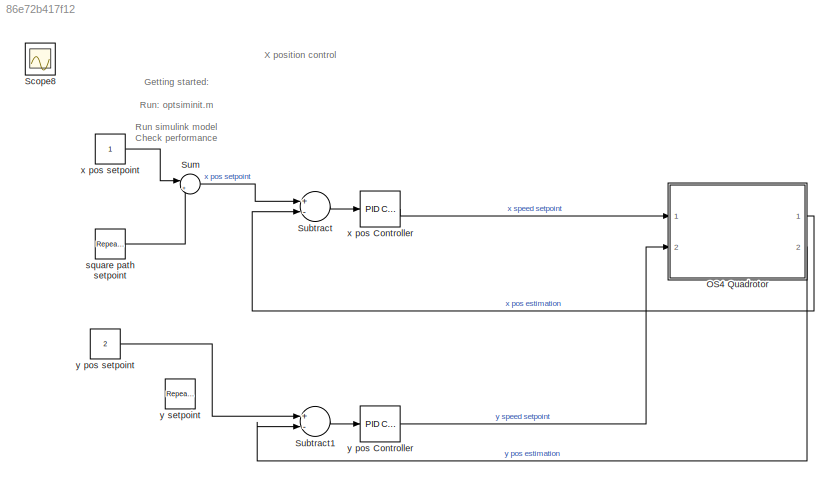
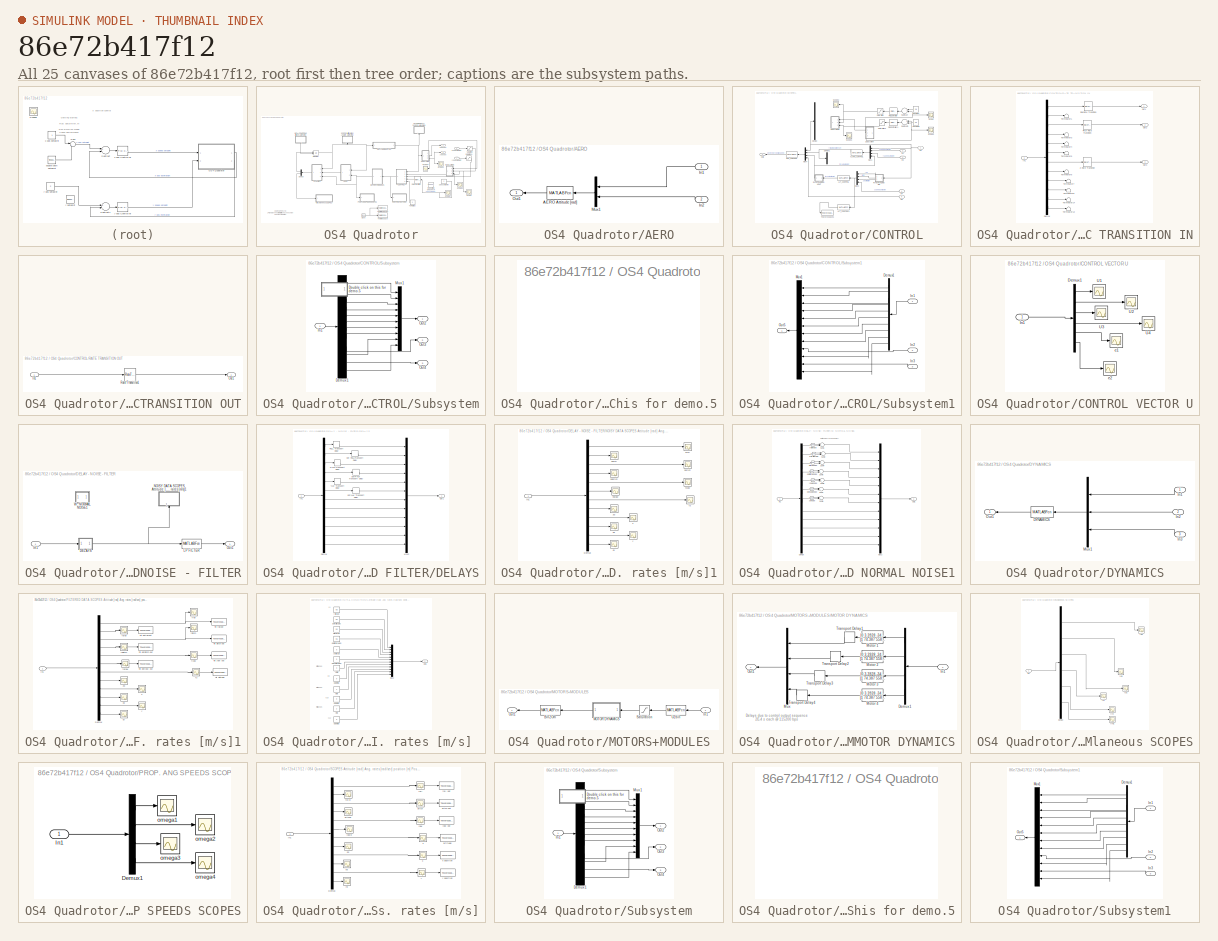
[diagram: thumbnail index - all 25 canvases of the model, root first then tree order]
MODEL slx_86e72b417f12
KIND model
CONFIG AbsTol = auto
CONFIG EnableMultiTasking = on
CONFIG FixedStep = 0.01
CONFIG MaxStep = auto
CONFIG MinStep = auto
CONFIG RelTol = 1e-3
CONFIG SampleTimeConstraint = Unconstrained
CONFIG Solver = ode4
CONFIG SolverName = ode4
CONFIG StartTime = 0.0
CONFIG StopTime = 10
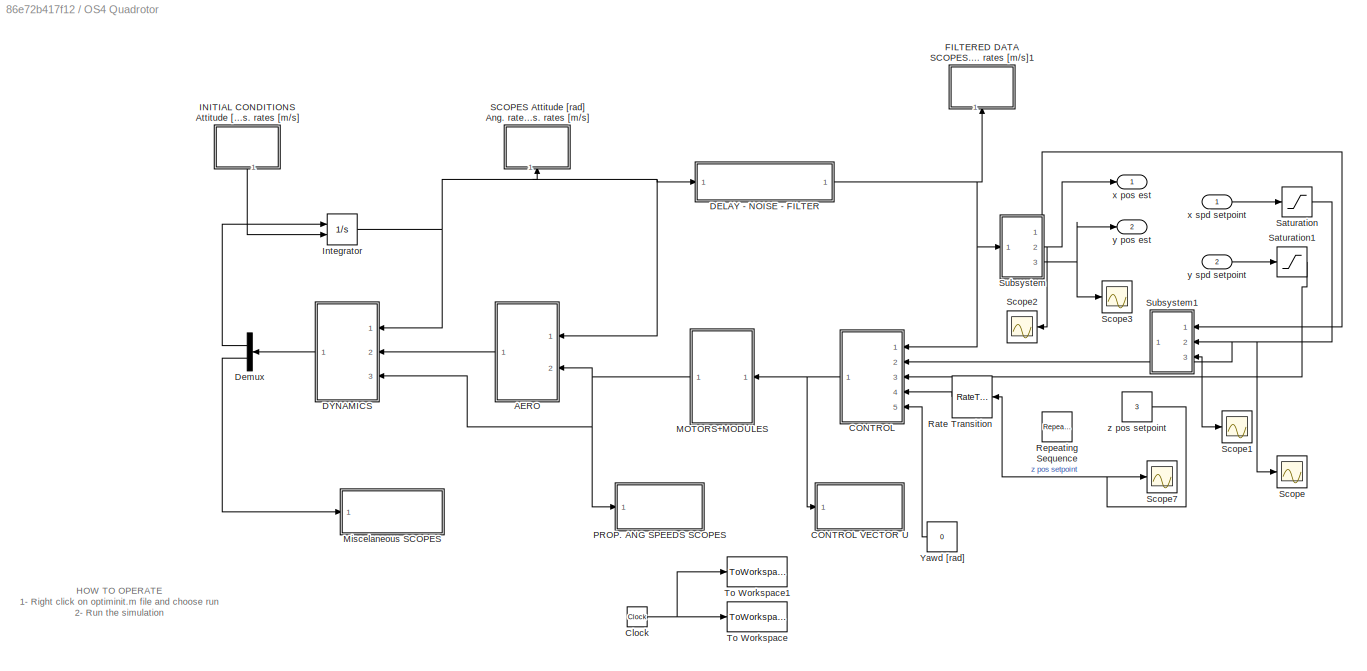
BLOCK [SubSystem] OS4 Quadrotor
  Ports = [2, 2]
  RequestExecContextInheritance = off
  Variant = off
BLOCK [SubSystem] OS4 Quadrotor/AERO
  Ports = [2, 1]
  RequestExecContextInheritance = off
  Variant = off
BLOCK [MATLABFcn] OS4 Quadrotor/AERO/AERO Attitude [rad]
  MATLABFcn = aero
  OutputDimensions = 24
  Ports = [1, 1]
BLOCK [Inport] OS4 Quadrotor/AERO/In1
  IconDisplay = Port number
BLOCK [Inport] OS4 Quadrotor/AERO/In2
  IconDisplay = Port number
  Port = 2
BLOCK [Mux] OS4 Quadrotor/AERO/Mux1
  DisplayOption = bar
  Inputs = 2
  Ports = [2, 1]
BLOCK [Outport] OS4 Quadrotor/AERO/Out1
  IconDisplay = Port number
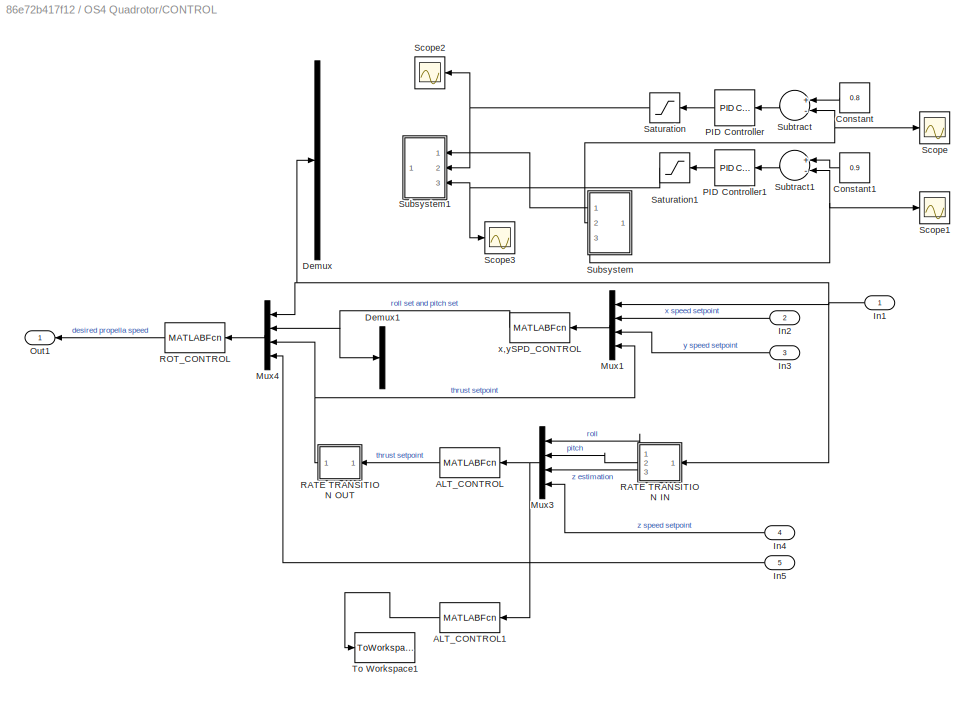
BLOCK [SubSystem] OS4 Quadrotor/CONTROL
  Ports = [5, 1]
  RequestExecContextInheritance = off
  Variant = off
BLOCK [SubSystem] OS4 Quadrotor/CONTROL VECTOR U
  Ports = [1]
  RequestExecContextInheritance = off
  Variant = off
BLOCK [Demux] OS4 Quadrotor/CONTROL VECTOR U/Demux1
  Outputs = 6
  Ports = [1, 6]
BLOCK [Inport] OS4 Quadrotor/CONTROL VECTOR U/In1
  IconDisplay = Port number
BLOCK [Scope] OS4 Quadrotor/CONTROL VECTOR U/U1
  NumInputPorts = 1
  Ports = [1]
  ScopeSpecificationString = C++SS(StrPVP('Location','[5, 52, 1021, 759]'),StrPVP('Open','off'),MxPVP('AxesTitles',53,'struct(''axes1'',''%<SignalLabel>'')'),StrPVP('TimeRange','3.5'),StrPVP('YMin','144.101'),StrPVP('YMax','144.104'),StrPVP('SaveName','ScopeData7'),StrPVP('DataFormat','StructureWithTime'),StrPVP('LimitDataPoints','off'),StrPVP('BlockParamSampleTime','0'),StrPVP('Decimation','1'),StrPVP('BlockParamSampleInput'...<+8ch>
BLOCK [Scope] OS4 Quadrotor/CONTROL VECTOR U/U2
  NumInputPorts = 1
  Ports = [1]
  ScopeSpecificationString = C++SS(StrPVP('Location','[674, 56, 1019, 356]'),StrPVP('Open','off'),MxPVP('AxesTitles',53,'struct(''axes1'',''%<SignalLabel>'')'),StrPVP('YMin','-0.6'),StrPVP('YMax','0.4'),StrPVP('SaveName','ScopeData8'),StrPVP('DataFormat','StructureWithTime'),StrPVP('LimitDataPoints','off'),StrPVP('BlockParamSampleTime','0'),StrPVP('Decimation','1'),StrPVP('BlockParamSampleInput','off'))
BLOCK [Scope] OS4 Quadrotor/CONTROL VECTOR U/U3
  NumInputPorts = 1
  Ports = [1]
  ScopeSpecificationString = C++SS(StrPVP('Location','[679, 422, 1019, 729]'),StrPVP('Open','off'),MxPVP('AxesTitles',53,'struct(''axes1'',''%<SignalLabel>'')'),StrPVP('YMin','-0.65'),StrPVP('YMax','0.35'),StrPVP('SaveName','ScopeData9'),StrPVP('DataFormat','StructureWithTime'),StrPVP('LimitDataPoints','off'),StrPVP('BlockParamSampleTime','0'),StrPVP('Decimation','1'),StrPVP('BlockParamSampleInput','off'))
BLOCK [Scope] OS4 Quadrotor/CONTROL VECTOR U/U4
  NumInputPorts = 1
  Ports = [1]
  ScopeSpecificationString = C++SS(StrPVP('Location','[5, 52, 1021, 729]'),StrPVP('Open','off'),MxPVP('AxesTitles',53,'struct(''axes1'',''%<SignalLabel>'')'),StrPVP('YMin','0'),StrPVP('YMax','150'),StrPVP('SaveName','ScopeData14'),StrPVP('DataFormat','StructureWithTime'),StrPVP('LimitDataPoints','off'),StrPVP('BlockParamSampleTime','0'),StrPVP('Decimation','1'),StrPVP('BlockParamSampleInput','off'))
BLOCK [Scope] OS4 Quadrotor/CONTROL VECTOR U/e1
  NumInputPorts = 1
  Ports = [1]
  ScopeSpecificationString = C++SS(StrPVP('Location','[102, 458, 407, 762]'),StrPVP('Open','off'),MxPVP('AxesTitles',53,'struct(''axes1'',''%<SignalLabel>'')'),StrPVP('YMin','0'),StrPVP('YMax','150'),StrPVP('SaveName','ScopeData11'),StrPVP('DataFormat','StructureWithTime'),StrPVP('LimitDataPoints','off'),StrPVP('BlockParamSampleTime','0'),StrPVP('Decimation','1'),StrPVP('BlockParamSampleInput','off'))
BLOCK [Scope] OS4 Quadrotor/CONTROL VECTOR U/e2
  NumInputPorts = 1
  Ports = [1]
  ScopeSpecificationString = C++SS(StrPVP('Location','[339, 59, 682, 351]'),StrPVP('Open','off'),MxPVP('AxesTitles',53,'struct(''axes1'',''%<SignalLabel>'')'),StrPVP('YMin','0'),StrPVP('YMax','150'),StrPVP('SaveName','ScopeData12'),StrPVP('DataFormat','StructureWithTime'),StrPVP('LimitDataPoints','off'),StrPVP('BlockParamSampleTime','0'),StrPVP('Decimation','1'),StrPVP('BlockParamSampleInput','off'))
BLOCK [MATLABFcn] OS4 Quadrotor/CONTROL/ALT_CONTROL
  MATLABFcn = alt_control
  OutputDimensions = 1
  Ports = [1, 1]
  SampleTime = 0.05
BLOCK [MATLABFcn] OS4 Quadrotor/CONTROL/ALT_CONTROL1
  Commented = on
  MATLABFcn = error_altitude
  OutputDimensions = 1
  Ports = [1, 1]
  SampleTime = 0.05
BLOCK [Constant] OS4 Quadrotor/CONTROL/Constant
  Value = 0.8
BLOCK [Constant] OS4 Quadrotor/CONTROL/Constant1
  Value = 0.9
BLOCK [Demux] OS4 Quadrotor/CONTROL/Demux
  DisplayOption = bar
  Outputs = 12
  Ports = [1, 12]
BLOCK [Demux] OS4 Quadrotor/CONTROL/Demux1
  DisplayOption = bar
  Outputs = 2
  Ports = [1, 2]
BLOCK [Inport] OS4 Quadrotor/CONTROL/In1
  IconDisplay = Port number
BLOCK [Inport] OS4 Quadrotor/CONTROL/In2
  IconDisplay = Port number
  Port = 2
BLOCK [Inport] OS4 Quadrotor/CONTROL/In3
  IconDisplay = Port number
  Port = 3
BLOCK [Inport] OS4 Quadrotor/CONTROL/In4
  IconDisplay = Port number
  Port = 4
BLOCK [Inport] OS4 Quadrotor/CONTROL/In5
  IconDisplay = Port number
  Port = 5
BLOCK [Mux] OS4 Quadrotor/CONTROL/Mux1
  DisplayOption = bar
  Ports = [4, 1]
BLOCK [Mux] OS4 Quadrotor/CONTROL/Mux3
  DisplayOption = bar
  Ports = [4, 1]
BLOCK [Mux] OS4 Quadrotor/CONTROL/Mux4
  DisplayOption = bar
  Ports = [4, 1]
BLOCK [Outport] OS4 Quadrotor/CONTROL/Out1
  IconDisplay = Port number
BLOCK [Reference] OS4 Quadrotor/CONTROL/PID Controller  REF=simulink/Continuous/PID Controller
  Ports = [1, 1]
  SourceBlock = simulink/Continuous/PID Controller
  SourceProductBaseCode = SL
  SourceProductName = Simulink
  SourceType = PID 1dof
BLOCK [Reference] OS4 Quadrotor/CONTROL/PID Controller1  REF=simulink/Continuous/PID Controller
  Ports = [1, 1]
  SourceBlock = simulink/Continuous/PID Controller
  SourceProductBaseCode = SL
  SourceProductName = Simulink
  SourceType = PID 1dof
BLOCK [SubSystem] OS4 Quadrotor/CONTROL/RATE TRANSITION IN
  Ports = [1, 3]
  RequestExecContextInheritance = off
  Variant = off
BLOCK [Demux] OS4 Quadrotor/CONTROL/RATE TRANSITION IN/Demux
  Outputs = 12
  Ports = [1, 12]
BLOCK [Inport] OS4 Quadrotor/CONTROL/RATE TRANSITION IN/In1
  IconDisplay = Port number
BLOCK [Outport] OS4 Quadrotor/CONTROL/RATE TRANSITION IN/Out1
  IconDisplay = Port number
BLOCK [Outport] OS4 Quadrotor/CONTROL/RATE TRANSITION IN/Out2
  IconDisplay = Port number
  Port = 2
BLOCK [Outport] OS4 Quadrotor/CONTROL/RATE TRANSITION IN/Out3
  IconDisplay = Port number
  Port = 3
BLOCK [RateTransition] OS4 Quadrotor/CONTROL/RATE TRANSITION IN/Pitch Rate Transition
  Deterministic = off
  OutPortSampleTime = 50E-3
BLOCK [RateTransition] OS4 Quadrotor/CONTROL/RATE TRANSITION IN/Roll Rate Transition
  Deterministic = off
  OutPortSampleTime = 50E-3
BLOCK [Terminator] OS4 Quadrotor/CONTROL/RATE TRANSITION IN/Terminator1
BLOCK [Terminator] OS4 Quadrotor/CONTROL/RATE TRANSITION IN/Terminator12
BLOCK [Terminator] OS4 Quadrotor/CONTROL/RATE TRANSITION IN/Terminator14
BLOCK [Terminator] OS4 Quadrotor/CONTROL/RATE TRANSITION IN/Terminator3
BLOCK [Terminator] OS4 Quadrotor/CONTROL/RATE TRANSITION IN/Terminator4
BLOCK [Terminator] OS4 Quadrotor/CONTROL/RATE TRANSITION IN/Terminator5
BLOCK [Terminator] OS4 Quadrotor/CONTROL/RATE TRANSITION IN/Terminator6
BLOCK [Terminator] OS4 Quadrotor/CONTROL/RATE TRANSITION IN/Terminator7
BLOCK [Terminator] OS4 Quadrotor/CONTROL/RATE TRANSITION IN/Terminator8
BLOCK [RateTransition] OS4 Quadrotor/CONTROL/RATE TRANSITION IN/Z Rate Transition
  Deterministic = off
  OutPortSampleTime = 50E-3
BLOCK [SubSystem] OS4 Quadrotor/CONTROL/RATE TRANSITION OUT
  Ports = [1, 1]
  RequestExecContextInheritance = off
  Variant = off
BLOCK [Inport] OS4 Quadrotor/CONTROL/RATE TRANSITION OUT/In1
  IconDisplay = Port number
BLOCK [Outport] OS4 Quadrotor/CONTROL/RATE TRANSITION OUT/Out1
  IconDisplay = Port number
BLOCK [RateTransition] OS4 Quadrotor/CONTROL/RATE TRANSITION OUT/Rate Transition1
  Deterministic = off
BLOCK [MATLABFcn] OS4 Quadrotor/CONTROL/ROT_CONTROL
  MATLABFcn = back_rot_control
  OutputDimensions = 6
  Ports = [1, 1]
BLOCK [Saturate] OS4 Quadrotor/CONTROL/Saturation
  InputPortMap = u0
  LowerLimit = -20
  Ports = [1, 1]
  UpperLimit = 20
BLOCK [Saturate] OS4 Quadrotor/CONTROL/Saturation1
  InputPortMap = u0
  LowerLimit = -20
  Ports = [1, 1]
  UpperLimit = 20
BLOCK [Scope] OS4 Quadrotor/CONTROL/Scope
  NumInputPorts = 1
  Ports = [1]
  ScopeSpecificationString = C++SS(StrPVP('Location','[188, 390, 512, 629]'),StrPVP('Open','off'),MxPVP('AxesTitles',53,'struct(''axes1'',''%<SignalLabel>'')'),StrPVP('YMin','-0.5'),StrPVP('YMax','2'),StrPVP('SaveName','ScopeData20'),StrPVP('DataFormat','StructureWithTime'),StrPVP('BlockParamSampleTime','0'),StrPVP('LimitDataPoints','on'),StrPVP('Decimation','1'),StrPVP('BlockParamSampleInput','off'))
BLOCK [Scope] OS4 Quadrotor/CONTROL/Scope1
  NumInputPorts = 1
  Ports = [1]
  ScopeSpecificationString = C++SS(StrPVP('Location','[188, 390, 512, 629]'),StrPVP('Open','off'),MxPVP('AxesTitles',53,'struct(''axes1'',''%<SignalLabel>'')'),StrPVP('YMin','-50'),StrPVP('YMax','400'),StrPVP('SaveName','ScopeData21'),StrPVP('DataFormat','StructureWithTime'),StrPVP('BlockParamSampleTime','0'),StrPVP('LimitDataPoints','on'),StrPVP('Decimation','1'),StrPVP('BlockParamSampleInput','off'))
BLOCK [Scope] OS4 Quadrotor/CONTROL/Scope2
  NumInputPorts = 1
  Ports = [1]
  ScopeSpecificationString = C++SS(StrPVP('Location','[188, 390, 512, 629]'),StrPVP('Open','off'),MxPVP('AxesTitles',53,'struct(''axes1'',''%<SignalLabel>'')'),StrPVP('YMin','-50'),StrPVP('YMax','400'),StrPVP('SaveName','ScopeData22'),StrPVP('DataFormat','StructureWithTime'),StrPVP('BlockParamSampleTime','0'),StrPVP('LimitDataPoints','on'),StrPVP('Decimation','1'),StrPVP('BlockParamSampleInput','off'))
BLOCK [Scope] OS4 Quadrotor/CONTROL/Scope3
  NumInputPorts = 1
  Ports = [1]
  ScopeSpecificationString = C++SS(StrPVP('Location','[188, 390, 512, 629]'),StrPVP('Open','off'),MxPVP('AxesTitles',53,'struct(''axes1'',''%<SignalLabel>'')'),StrPVP('YMin','-50'),StrPVP('YMax','400'),StrPVP('SaveName','ScopeData23'),StrPVP('DataFormat','StructureWithTime'),StrPVP('BlockParamSampleTime','0'),StrPVP('LimitDataPoints','on'),StrPVP('Decimation','1'),StrPVP('BlockParamSampleInput','off'))
BLOCK [SubSystem] OS4 Quadrotor/CONTROL/Subsystem
  Ports = [1, 3]
  RequestExecContextInheritance = off
  Variant = off
BLOCK [Demux] OS4 Quadrotor/CONTROL/Subsystem/Demux1
  DisplayOption = bar
  Outputs = 12
  Ports = [1, 12]
BLOCK [SubSystem] OS4 Quadrotor/CONTROL/Subsystem/Double click on this for demo.5
  OpenFcn = optsiminit
  Ports = []
  RequestExecContextInheritance = off
  Variant = off
BLOCK [Inport] OS4 Quadrotor/CONTROL/Subsystem/In1
  IconDisplay = Port number
BLOCK [Mux] OS4 Quadrotor/CONTROL/Subsystem/Mux1
  DisplayOption = bar
  Inputs = 10
  Ports = [10, 1]
BLOCK [Outport] OS4 Quadrotor/CONTROL/Subsystem/Out2
  IconDisplay = Port number
BLOCK [Outport] OS4 Quadrotor/CONTROL/Subsystem/Out3
  IconDisplay = Port number
  Port = 2
BLOCK [Outport] OS4 Quadrotor/CONTROL/Subsystem/Out4
  IconDisplay = Port number
  Port = 3
BLOCK [SubSystem] OS4 Quadrotor/CONTROL/Subsystem1
  Ports = [3, 1]
  RequestExecContextInheritance = off
  Variant = off
BLOCK [Demux] OS4 Quadrotor/CONTROL/Subsystem1/Demux1
  DisplayOption = bar
  Outputs = 10
  Ports = [1, 10]
BLOCK [Inport] OS4 Quadrotor/CONTROL/Subsystem1/In1
  IconDisplay = Port number
BLOCK [Inport] OS4 Quadrotor/CONTROL/Subsystem1/In2
  IconDisplay = Port number
  Port = 2
BLOCK [Inport] OS4 Quadrotor/CONTROL/Subsystem1/In3
  IconDisplay = Port number
  Port = 3
BLOCK [Mux] OS4 Quadrotor/CONTROL/Subsystem1/Mux1
  DisplayOption = bar
  Inputs = 12
  Ports = [12, 1]
BLOCK [Outport] OS4 Quadrotor/CONTROL/Subsystem1/Out5
  IconDisplay = Port number
BLOCK [Sum] OS4 Quadrotor/CONTROL/Subtract
  InputSameDT = off
  Inputs = +-
  OutDataTypeStr = Inherit: Inherit via internal rule
  Ports = [2, 1]
  SaturateOnIntegerOverflow = off
BLOCK [Sum] OS4 Quadrotor/CONTROL/Subtract1
  InputSameDT = off
  Inputs = +-
  OutDataTypeStr = Inherit: Inherit via internal rule
  Ports = [2, 1]
  SaturateOnIntegerOverflow = off
BLOCK [ToWorkspace] OS4 Quadrotor/CONTROL/To Workspace1
  Commented = on
  MaxDataPoints = inf
  Ports = [1]
  SampleTime = -1
  VariableName = e_alt
BLOCK [MATLABFcn] OS4 Quadrotor/CONTROL/x,ySPD_CONTROL
  MATLABFcn = spd_control
  OutputDimensions = 2
  Ports = [1, 1]
BLOCK [Clock] OS4 Quadrotor/Clock
BLOCK [SubSystem] OS4 Quadrotor/DELAY - NOISE - FILTER
  Ports = [1, 1]
  RequestExecContextInheritance = off
  Variant = off
BLOCK [SubSystem] OS4 Quadrotor/DELAY - NOISE - FILTER/DELAYS
  Ports = [1, 1]
  RequestExecContextInheritance = off
  Variant = off
BLOCK [Demux] OS4 Quadrotor/DELAY - NOISE - FILTER/DELAYS/Demux
  Outputs = 12
  Ports = [1, 12]
BLOCK [Inport] OS4 Quadrotor/DELAY - NOISE - FILTER/DELAYS/In1
  IconDisplay = Port number
BLOCK [Mux] OS4 Quadrotor/DELAY - NOISE - FILTER/DELAYS/Mux2
  DisplayOption = bar
  Inputs = 12
  Ports = [12, 1]
BLOCK [Outport] OS4 Quadrotor/DELAY - NOISE - FILTER/DELAYS/Out1
  IconDisplay = Port number
BLOCK [TransportDelay] OS4 Quadrotor/DELAY - NOISE - FILTER/DELAYS/PITCH Transport Delay
  DelayTime = 8E-3
  Ports = [1, 1]
BLOCK [TransportDelay] OS4 Quadrotor/DELAY - NOISE - FILTER/DELAYS/ROLL Transport Delay
  DelayTime = 8E-3
  Ports = [1, 1]
BLOCK [TransportDelay] OS4 Quadrotor/DELAY - NOISE - FILTER/DELAYS/YAW Transport Delay
  DelayTime = 8E-3
  Ports = [1, 1]
BLOCK [TransportDelay] OS4 Quadrotor/DELAY - NOISE - FILTER/DELAYS/dot ROLLTransport Delay
  DelayTime = 4.5E-3
  Ports = [1, 1]
BLOCK [TransportDelay] OS4 Quadrotor/DELAY - NOISE - FILTER/DELAYS/dotPITCH Transport Delay
  DelayTime = 4.5E-3
  Ports = [1, 1]
BLOCK [TransportDelay] OS4 Quadrotor/DELAY - NOISE - FILTER/DELAYS/dotYAW Transport Delay
  DelayTime = 4.5E-3
  Ports = [1, 1]
BLOCK [Inport] OS4 Quadrotor/DELAY - NOISE - FILTER/In1
  IconDisplay = Port number
BLOCK [MATLABFcn] OS4 Quadrotor/DELAY - NOISE - FILTER/LP FILTER
  MATLABFcn = sam5_filter
  OutputDimensions = 12
  OutputSignalType = real
  Ports = [1, 1]
BLOCK [SubSystem] OS4 Quadrotor/DELAY - NOISE - FILTER/NOISY DATA SCOPES Attitude [rad] Ang. rates [rad//sec] position [m] Pos. rates [m//s]1
  Ports = [1]
  RequestExecContextInheritance = off
  Variant = off
BLOCK [Demux] OS4 Quadrotor/DELAY - NOISE - FILTER/NOISY DATA SCOPES Attitude [rad] Ang. rates [rad//sec] position [m] Pos. rates [m//s]1/Demux
  Outputs = 12
  Ports = [1, 12]
BLOCK [Inport] OS4 Quadrotor/DELAY - NOISE - FILTER/NOISY DATA SCOPES Attitude [rad] Ang. rates [rad//sec] position [m] Pos. rates [m//s]1/In1
  IconDisplay = Port number
BLOCK [Scope] OS4 Quadrotor/DELAY - NOISE - FILTER/NOISY DATA SCOPES Attitude [rad] Ang. rates [rad//sec] position [m] Pos. rates [m//s]1/dx
  NumInputPorts = 1
  Ports = [1]
  ScopeSpecificationString = C++SS(StrPVP('Location','[6, 424, 339, 732]'),StrPVP('Open','off'),MxPVP('AxesTitles',53,'struct(''axes1'',''%<SignalLabel>'')'),StrPVP('TimeRange','5               '),StrPVP('YMin','0'),StrPVP('YMax','0.009'),StrPVP('SaveName','ScopeData5'),StrPVP('DataFormat','StructureWithTime'),StrPVP('LimitDataPoints','off'),StrPVP('BlockParamSampleTime','0'),StrPVP('Decimation','1'),StrPVP('BlockParamSampleI...<+13ch>
BLOCK [Scope] OS4 Quadrotor/DELAY - NOISE - FILTER/NOISY DATA SCOPES Attitude [rad] Ang. rates [rad//sec] position [m] Pos. rates [m//s]1/dy
  NumInputPorts = 1
  Ports = [1]
  ScopeSpecificationString = C++SS(StrPVP('Location','[6, 424, 339, 732]'),StrPVP('Open','off'),MxPVP('AxesTitles',53,'struct(''axes1'',''%<SignalLabel>'')'),StrPVP('TimeRange','5               '),StrPVP('YMin','0'),StrPVP('YMax','0.009'),StrPVP('SaveName','ScopeData10'),StrPVP('DataFormat','StructureWithTime'),StrPVP('LimitDataPoints','off'),StrPVP('BlockParamSampleTime','0'),StrPVP('Decimation','1'),StrPVP('BlockParamSample...<+14ch>
BLOCK [Scope] OS4 Quadrotor/DELAY - NOISE - FILTER/NOISY DATA SCOPES Attitude [rad] Ang. rates [rad//sec] position [m] Pos. rates [m//s]1/fz
  NumInputPorts = 1
  Ports = [1]
  ScopeSpecificationString = C++SS(StrPVP('Location','[1, 52, 1017, 729]'),StrPVP('Open','off'),MxPVP('AxesTitles',53,'struct(''axes1'',''%<SignalLabel>'')'),StrPVP('TimeRange','5               '),StrPVP('YMin','0'),StrPVP('YMax','0.009'),StrPVP('SaveName','ScopeData17'),StrPVP('DataFormat','StructureWithTime'),StrPVP('LimitDataPoints','off'),StrPVP('BlockParamSampleTime','0'),StrPVP('Decimation','1'),StrPVP('BlockParamSample...<+14ch>
BLOCK [Scope] OS4 Quadrotor/DELAY - NOISE - FILTER/NOISY DATA SCOPES Attitude [rad] Ang. rates [rad//sec] position [m] Pos. rates [m//s]1/ndpitch
  NumInputPorts = 1
  Ports = [1]
  ScopeSpecificationString = C++SS(StrPVP('Location','[471, 331, 869, 607]'),StrPVP('Open','off'),MxPVP('AxesTitles',53,'struct(''axes1'',''%<SignalLabel>'')'),StrPVP('YMin','-2250'),StrPVP('YMax','2250'),StrPVP('SaveName','ScopeData15'),StrPVP('DataFormat','StructureWithTime'),StrPVP('LimitDataPoints','off'),StrPVP('BlockParamSampleTime','0'),StrPVP('Decimation','1'),StrPVP('BlockParamSampleInput','off'))
BLOCK [Scope] OS4 Quadrotor/DELAY - NOISE - FILTER/NOISY DATA SCOPES Attitude [rad] Ang. rates [rad//sec] position [m] Pos. rates [m//s]1/ndroll
  NumInputPorts = 1
  Ports = [1]
  ScopeSpecificationString = C++SS(StrPVP('Location','[1, 52, 1017, 729]'),StrPVP('Open','off'),MxPVP('AxesTitles',53,'struct(''axes1'',''%<SignalLabel>'')'),StrPVP('YMin','-0.25'),StrPVP('YMax','-0.05'),StrPVP('SaveName','ScopeData14'),StrPVP('DataFormat','StructureWithTime'),StrPVP('LimitDataPoints','off'),StrPVP('BlockParamSampleTime','0'),StrPVP('Decimation','1'),StrPVP('BlockParamSampleInput','off'))
BLOCK [Scope] OS4 Quadrotor/DELAY - NOISE - FILTER/NOISY DATA SCOPES Attitude [rad] Ang. rates [rad//sec] position [m] Pos. rates [m//s]1/ndyaw
  NumInputPorts = 1
  Ports = [1]
  ScopeSpecificationString = C++SS(StrPVP('Location','[5, 52, 1021, 729]'),StrPVP('Open','off'),MxPVP('AxesTitles',53,'struct(''axes1'',''%<SignalLabel>'')'),StrPVP('TimeRange','18'),StrPVP('YMin','-200'),StrPVP('YMax','200'),StrPVP('SaveName','ScopeData16'),StrPVP('DataFormat','StructureWithTime'),StrPVP('LimitDataPoints','off'),StrPVP('BlockParamSampleTime','0'),StrPVP('Decimation','1'),StrPVP('BlockParamSampleInput','off')...<+1ch>
BLOCK [Scope] OS4 Quadrotor/DELAY - NOISE - FILTER/NOISY DATA SCOPES Attitude [rad] Ang. rates [rad//sec] position [m] Pos. rates [m//s]1/npitch
  NumInputPorts = 1
  Ports = [1]
  ScopeSpecificationString = C++SS(StrPVP('Location','[686, 299, 1019, 484]'),StrPVP('Open','off'),MxPVP('AxesTitles',53,'struct(''axes1'',''%<SignalLabel>'')'),StrPVP('TimeRange','4'),StrPVP('YMin','-1'),StrPVP('YMax','1'),StrPVP('SaveName','ScopeData1'),StrPVP('DataFormat','StructureWithTime'),StrPVP('LimitDataPoints','off'),StrPVP('BlockParamSampleTime','0'),StrPVP('Decimation','1'),StrPVP('BlockParamSampleInput','off'))
BLOCK [Scope] OS4 Quadrotor/DELAY - NOISE - FILTER/NOISY DATA SCOPES Attitude [rad] Ang. rates [rad//sec] position [m] Pos. rates [m//s]1/nroll
  NumInputPorts = 1
  Ports = [1]
  ScopeSpecificationString = C++SS(StrPVP('Location','[5, 52, 1021, 729]'),StrPVP('Open','off'),MxPVP('AxesTitles',53,'struct(''axes1'',''%<SignalLabel>'')'),StrPVP('TimeRange','0.25'),StrPVP('YMin','-1'),StrPVP('YMax','1'),StrPVP('DataFormat','StructureWithTime'),StrPVP('LimitDataPoints','off'),StrPVP('BlockParamSampleTime','0'),StrPVP('Decimation','1'),StrPVP('BlockParamSampleInput','off'))
BLOCK [Scope] OS4 Quadrotor/DELAY - NOISE - FILTER/NOISY DATA SCOPES Attitude [rad] Ang. rates [rad//sec] position [m] Pos. rates [m//s]1/nyaw
  NumInputPorts = 1
  Ports = [1]
  ScopeSpecificationString = C++SS(StrPVP('Location','[686, 544, 1019, 734]'),StrPVP('Open','off'),MxPVP('AxesTitles',53,'struct(''axes1'',''%<SignalLabel>'')'),StrPVP('TimeRange','5               '),StrPVP('YMin','0'),StrPVP('YMax','0.22'),StrPVP('SaveName','ScopeData2'),StrPVP('DataFormat','StructureWithTime'),StrPVP('LimitDataPoints','off'),StrPVP('BlockParamSampleTime','0'),StrPVP('Decimation','1'),StrPVP('BlockParamSampl...<+15ch>
BLOCK [Scope] OS4 Quadrotor/DELAY - NOISE - FILTER/NOISY DATA SCOPES Attitude [rad] Ang. rates [rad//sec] position [m] Pos. rates [m//s]1/x
  NumInputPorts = 1
  Ports = [1]
  ScopeSpecificationString = C++SS(StrPVP('Location','[6, 424, 339, 732]'),StrPVP('Open','off'),MxPVP('AxesTitles',53,'struct(''axes1'',''%<SignalLabel>'')'),StrPVP('TimeRange','5               '),StrPVP('YMin','0'),StrPVP('YMax','0.009'),StrPVP('SaveName','ScopeData4'),StrPVP('DataFormat','StructureWithTime'),StrPVP('LimitDataPoints','off'),StrPVP('BlockParamSampleTime','0'),StrPVP('Decimation','1'),StrPVP('BlockParamSampleI...<+13ch>
BLOCK [Scope] OS4 Quadrotor/DELAY - NOISE - FILTER/NOISY DATA SCOPES Attitude [rad] Ang. rates [rad//sec] position [m] Pos. rates [m//s]1/y
  NumInputPorts = 1
  Ports = [1]
  ScopeSpecificationString = C++SS(StrPVP('Location','[6, 424, 339, 732]'),StrPVP('Open','off'),MxPVP('AxesTitles',53,'struct(''axes1'',''%<SignalLabel>'')'),StrPVP('TimeRange','5               '),StrPVP('YMin','0'),StrPVP('YMax','0.009'),StrPVP('SaveName','ScopeData6'),StrPVP('DataFormat','StructureWithTime'),StrPVP('LimitDataPoints','off'),StrPVP('BlockParamSampleTime','0'),StrPVP('Decimation','1'),StrPVP('BlockParamSampleI...<+13ch>
BLOCK [Scope] OS4 Quadrotor/DELAY - NOISE - FILTER/NOISY DATA SCOPES Attitude [rad] Ang. rates [rad//sec] position [m] Pos. rates [m//s]1/zd
  NumInputPorts = 1
  Ports = [1]
  ScopeSpecificationString = C++SS(StrPVP('Location','[5, 52, 1021, 729]'),StrPVP('Open','off'),MxPVP('AxesTitles',53,'struct(''axes1'',''%<SignalLabel>'')'),StrPVP('TimeRange','10              '),StrPVP('YMin','-110.5'),StrPVP('YMax','-107.25'),StrPVP('SaveName','ScopeData18'),StrPVP('DataFormat','StructureWithTime'),StrPVP('LimitDataPoints','off'),StrPVP('BlockParamSampleTime','0'),StrPVP('Decimation','1'),StrPVP('BlockPara...<+21ch>
BLOCK [Outport] OS4 Quadrotor/DELAY - NOISE - FILTER/Out1
  IconDisplay = Port number
BLOCK [SubSystem] OS4 Quadrotor/DELAY - NOISE - FILTER/W. NORMAL NOISE1
  Ports = [1, 1]
  RequestExecContextInheritance = off
  Variant = off
BLOCK [Demux] OS4 Quadrotor/DELAY - NOISE - FILTER/W. NORMAL NOISE1/Demux
  Outputs = 12
  Ports = [1, 12]
BLOCK [Inport] OS4 Quadrotor/DELAY - NOISE - FILTER/W. NORMAL NOISE1/In1
  IconDisplay = Port number
BLOCK [Mux] OS4 Quadrotor/DELAY - NOISE - FILTER/W. NORMAL NOISE1/Mux2
  DisplayOption = bar
  Inputs = 12
  Ports = [12, 1]
BLOCK [Outport] OS4 Quadrotor/DELAY - NOISE - FILTER/W. NORMAL NOISE1/Out1
  IconDisplay = Port number
BLOCK [Sum] OS4 Quadrotor/DELAY - NOISE - FILTER/W. NORMAL NOISE1/Sum1
  IconShape = round
  InputSameDT = off
  Inputs = |++
  OutDataTypeStr = Inherit: Inherit via internal rule
  Ports = [2, 1]
BLOCK [Sum] OS4 Quadrotor/DELAY - NOISE - FILTER/W. NORMAL NOISE1/Sum2
  IconShape = round
  InputSameDT = off
  Inputs = |++
  OutDataTypeStr = Inherit: Inherit via internal rule
  Ports = [2, 1]
BLOCK [Sum] OS4 Quadrotor/DELAY - NOISE - FILTER/W. NORMAL NOISE1/Sum4
  IconShape = round
  InputSameDT = off
  Inputs = |++
  OutDataTypeStr = Inherit: Inherit via internal rule
  Ports = [2, 1]
BLOCK [Sum] OS4 Quadrotor/DELAY - NOISE - FILTER/W. NORMAL NOISE1/Sum5
  IconShape = round
  InputSameDT = off
  Inputs = |++
  OutDataTypeStr = Inherit: Inherit via internal rule
  Ports = [2, 1]
BLOCK [Sum] OS4 Quadrotor/DELAY - NOISE - FILTER/W. NORMAL NOISE1/Sum6
  IconShape = round
  InputSameDT = off
  Inputs = |++
  OutDataTypeStr = Inherit: Inherit via internal rule
  Ports = [2, 1]
BLOCK [Sum] OS4 Quadrotor/DELAY - NOISE - FILTER/W. NORMAL NOISE1/Sum7
  IconShape = round
  InputSameDT = off
  Inputs = |++
  OutDataTypeStr = Inherit: Inherit via internal rule
  Ports = [2, 1]
BLOCK [Sum] OS4 Quadrotor/DELAY - NOISE - FILTER/W. NORMAL NOISE1/Sum8
  IconShape = round
  InputSameDT = off
  Inputs = |++
  OutDataTypeStr = Inherit: Inherit via internal rule
  Ports = [2, 1]
BLOCK [Reference] OS4 Quadrotor/DELAY - NOISE - FILTER/W. NORMAL NOISE1/dot pitchw noise  REF=simulink/Sources/Band-Limited
White Noise
  Ports = [0, 1]
  SourceBlock = simulink/Sources/Band-Limited\nWhite Noise
  SourceProductBaseCode = SL
  SourceProductName = Simulink
  SourceType = Band-Limited White Noise.
BLOCK [Reference] OS4 Quadrotor/DELAY - NOISE - FILTER/W. NORMAL NOISE1/dot roll w noise  REF=simulink/Sources/Band-Limited
White Noise
  Ports = [0, 1]
  SourceBlock = simulink/Sources/Band-Limited\nWhite Noise
  SourceProductBaseCode = SL
  SourceProductName = Simulink
  SourceType = Band-Limited White Noise.
BLOCK [Reference] OS4 Quadrotor/DELAY - NOISE - FILTER/W. NORMAL NOISE1/dot yaw w noise  REF=simulink/Sources/Band-Limited
White Noise
  Ports = [0, 1]
  SourceBlock = simulink/Sources/Band-Limited\nWhite Noise
  SourceProductBaseCode = SL
  SourceProductName = Simulink
  SourceType = Band-Limited White Noise.
BLOCK [Reference] OS4 Quadrotor/DELAY - NOISE - FILTER/W. NORMAL NOISE1/pitch w noise  REF=simulink/Sources/Band-Limited
White Noise
  Ports = [0, 1]
  SourceBlock = simulink/Sources/Band-Limited\nWhite Noise
  SourceProductBaseCode = SL
  SourceProductName = Simulink
  SourceType = Band-Limited White Noise.
BLOCK [Reference] OS4 Quadrotor/DELAY - NOISE - FILTER/W. NORMAL NOISE1/roll w noise  REF=simulink/Sources/Band-Limited
White Noise
  Ports = [0, 1]
  SourceBlock = simulink/Sources/Band-Limited\nWhite Noise
  SourceProductBaseCode = SL
  SourceProductName = Simulink
  SourceType = Band-Limited White Noise.
BLOCK [Reference] OS4 Quadrotor/DELAY - NOISE - FILTER/W. NORMAL NOISE1/yaw w noise  REF=simulink/Sources/Band-Limited
White Noise
  Ports = [0, 1]
  SourceBlock = simulink/Sources/Band-Limited\nWhite Noise
  SourceProductBaseCode = SL
  SourceProductName = Simulink
  SourceType = Band-Limited White Noise.
BLOCK [Reference] OS4 Quadrotor/DELAY - NOISE - FILTER/W. NORMAL NOISE1/z w noise  REF=simulink/Sources/Band-Limited
White Noise
  Ports = [0, 1]
  SourceBlock = simulink/Sources/Band-Limited\nWhite Noise
  SourceProductBaseCode = SL
  SourceProductName = Simulink
  SourceType = Band-Limited White Noise.
BLOCK [SubSystem] OS4 Quadrotor/DYNAMICS
  Ports = [3, 1]
  RequestExecContextInheritance = off
  Variant = off
BLOCK [MATLABFcn] OS4 Quadrotor/DYNAMICS/DYNAMICS
  MATLABFcn = dinamica
  OutputDimensions = 18
  Ports = [1, 1]
BLOCK [Inport] OS4 Quadrotor/DYNAMICS/In1
  IconDisplay = Port number
BLOCK [Inport] OS4 Quadrotor/DYNAMICS/In2
  IconDisplay = Port number
  Port = 2
BLOCK [Inport] OS4 Quadrotor/DYNAMICS/In3
  IconDisplay = Port number
  Port = 3
BLOCK [Mux] OS4 Quadrotor/DYNAMICS/Mux1
  DisplayOption = bar
  Inputs = 3
  Ports = [3, 1]
BLOCK [Outport] OS4 Quadrotor/DYNAMICS/Out1
  IconDisplay = Port number
BLOCK [Demux] OS4 Quadrotor/Demux
  Outputs = 2
  Ports = [1, 2]
BLOCK [SubSystem] OS4 Quadrotor/FILTERED DATA SCOPES Attitude [rad] Ang. rates [rad//sec] position [m] Pos. rates [m//s]1
  Ports = [1]
  RequestExecContextInheritance = off
  Variant = off
BLOCK [Demux] OS4 Quadrotor/FILTERED DATA SCOPES Attitude [rad] Ang. rates [rad//sec] position [m] Pos. rates [m//s]1/Demux
  Outputs = 12
  Ports = [1, 12]
BLOCK [Inport] OS4 Quadrotor/FILTERED DATA SCOPES Attitude [rad] Ang. rates [rad//sec] position [m] Pos. rates [m//s]1/In1
  IconDisplay = Port number
BLOCK [Scope] OS4 Quadrotor/FILTERED DATA SCOPES Attitude [rad] Ang. rates [rad//sec] position [m] Pos. rates [m//s]1/dx
  NumInputPorts = 1
  Ports = [1]
  ScopeSpecificationString = C++SS(StrPVP('Location','[365, 433, 698, 741]'),StrPVP('Open','off'),MxPVP('AxesTitles',53,'struct(''axes1'',''%<SignalLabel>'')'),StrPVP('TimeRange','5               '),StrPVP('YMin','0'),StrPVP('YMax','0.009'),StrPVP('SaveName','ScopeData5'),StrPVP('DataFormat','StructureWithTime'),StrPVP('LimitDataPoints','off'),StrPVP('BlockParamSampleTime','0'),StrPVP('Decimation','1'),StrPVP('BlockParamSampl...<+15ch>
BLOCK [Scope] OS4 Quadrotor/FILTERED DATA SCOPES Attitude [rad] Ang. rates [rad//sec] position [m] Pos. rates [m//s]1/dy
  NumInputPorts = 1
  Ports = [1]
  ScopeSpecificationString = C++SS(StrPVP('Location','[304, 380, 637, 688]'),StrPVP('Open','off'),MxPVP('AxesTitles',53,'struct(''axes1'',''%<SignalLabel>'')'),StrPVP('TimeRange','5               '),StrPVP('YMin','0'),StrPVP('YMax','0.009'),StrPVP('SaveName','ScopeData10'),StrPVP('DataFormat','StructureWithTime'),StrPVP('LimitDataPoints','off'),StrPVP('BlockParamSampleTime','0'),StrPVP('Decimation','1'),StrPVP('BlockParamSamp...<+16ch>
BLOCK [Scope] OS4 Quadrotor/FILTERED DATA SCOPES Attitude [rad] Ang. rates [rad//sec] position [m] Pos. rates [m//s]1/fdpitch
  NumInputPorts = 1
  Ports = [1]
  ScopeSpecificationString = C++SS(StrPVP('Location','[471, 331, 869, 607]'),StrPVP('Open','off'),MxPVP('AxesTitles',53,'struct(''axes1'',''%<SignalLabel>'')'),StrPVP('YMin','-2250'),StrPVP('YMax','2250'),StrPVP('SaveName','ScopeData15'),StrPVP('DataFormat','StructureWithTime'),StrPVP('LimitDataPoints','off'),StrPVP('BlockParamSampleTime','0'),StrPVP('Decimation','1'),StrPVP('BlockParamSampleInput','off'))
BLOCK [Scope] OS4 Quadrotor/FILTERED DATA SCOPES Attitude [rad] Ang. rates [rad//sec] position [m] Pos. rates [m//s]1/fdroll
  NumInputPorts = 1
  Ports = [1]
  ScopeSpecificationString = C++SS(StrPVP('Location','[118, 429, 703, 706]'),StrPVP('Open','off'),MxPVP('AxesTitles',53,'struct(''axes1'',''%<SignalLabel>'')'),StrPVP('YMin','-0.25'),StrPVP('YMax','-0.05'),StrPVP('SaveName','ScopeData14'),StrPVP('DataFormat','StructureWithTime'),StrPVP('LimitDataPoints','off'),StrPVP('BlockParamSampleTime','0'),StrPVP('Decimation','1'),StrPVP('BlockParamSampleInput','off'))
BLOCK [Scope] OS4 Quadrotor/FILTERED DATA SCOPES Attitude [rad] Ang. rates [rad//sec] position [m] Pos. rates [m//s]1/fdyaw
  NumInputPorts = 1
  Ports = [1]
  ScopeSpecificationString = C++SS(StrPVP('Location','[5, 52, 1021, 729]'),StrPVP('Open','off'),MxPVP('AxesTitles',53,'struct(''axes1'',''%<SignalLabel>'')'),StrPVP('TimeRange','18'),StrPVP('YMin','-200'),StrPVP('YMax','200'),StrPVP('SaveName','ScopeData16'),StrPVP('DataFormat','StructureWithTime'),StrPVP('LimitDataPoints','off'),StrPVP('BlockParamSampleTime','0'),StrPVP('Decimation','1'),StrPVP('BlockParamSampleInput','off')...<+1ch>
BLOCK [ToWorkspace] OS4 Quadrotor/FILTERED DATA SCOPES Attitude [rad] Ang. rates [rad//sec] position [m] Pos. rates [m//s]1/filt altitude
  MaxDataPoints = inf
  Ports = [1]
  SampleTime = -1
  VariableName = fz
BLOCK [ToWorkspace] OS4 Quadrotor/FILTERED DATA SCOPES Attitude [rad] Ang. rates [rad//sec] position [m] Pos. rates [m//s]1/filt dotpitch out
  MaxDataPoints = inf
  Ports = [1]
  SampleTime = -1
  VariableName = dotfpitch
BLOCK [ToWorkspace] OS4 Quadrotor/FILTERED DATA SCOPES Attitude [rad] Ang. rates [rad//sec] position [m] Pos. rates [m//s]1/filt dotroll out
  MaxDataPoints = inf
  Ports = [1]
  SampleTime = -1
  VariableName = dotfroll
BLOCK [ToWorkspace] OS4 Quadrotor/FILTERED DATA SCOPES Attitude [rad] Ang. rates [rad//sec] position [m] Pos. rates [m//s]1/filt dotyaw out
  MaxDataPoints = inf
  Ports = [1]
  SampleTime = -1
  VariableName = dotfyaw
BLOCK [ToWorkspace] OS4 Quadrotor/FILTERED DATA SCOPES Attitude [rad] Ang. rates [rad//sec] position [m] Pos. rates [m//s]1/filt pitch out
  MaxDataPoints = inf
  Ports = [1]
  SampleTime = -1
  VariableName = fpitch
BLOCK [ToWorkspace] OS4 Quadrotor/FILTERED DATA SCOPES Attitude [rad] Ang. rates [rad//sec] position [m] Pos. rates [m//s]1/filt roll out
  MaxDataPoints = inf
  Ports = [1]
  SampleTime = -1
  VariableName = froll
BLOCK [ToWorkspace] OS4 Quadrotor/FILTERED DATA SCOPES Attitude [rad] Ang. rates [rad//sec] position [m] Pos. rates [m//s]1/filt yaw out
  MaxDataPoints = inf
  Ports = [1]
  SampleTime = -1
  VariableName = fyaw
BLOCK [Scope] OS4 Quadrotor/FILTERED DATA SCOPES Attitude [rad] Ang. rates [rad//sec] position [m] Pos. rates [m//s]1/fpitch
  NumInputPorts = 1
  Ports = [1]
  ScopeSpecificationString = C++SS(StrPVP('Location','[686, 299, 1019, 484]'),StrPVP('Open','off'),MxPVP('AxesTitles',53,'struct(''axes1'',''%<SignalLabel>'')'),StrPVP('TimeRange','4'),StrPVP('YMin','-1'),StrPVP('YMax','1'),StrPVP('SaveName','ScopeData1'),StrPVP('DataFormat','StructureWithTime'),StrPVP('LimitDataPoints','off'),StrPVP('BlockParamSampleTime','0'),StrPVP('Decimation','1'),StrPVP('BlockParamSampleInput','off'))
BLOCK [Scope] OS4 Quadrotor/FILTERED DATA SCOPES Attitude [rad] Ang. rates [rad//sec] position [m] Pos. rates [m//s]1/froll
  NumInputPorts = 1
  Ports = [1]
  ScopeSpecificationString = C++SS(StrPVP('Location','[7, 36, 1018, 388]'),StrPVP('Open','off'),MxPVP('AxesTitles',53,'struct(''axes1'',''%<SignalLabel>'')'),StrPVP('TimeRange','0.25'),StrPVP('YMin','-1'),StrPVP('YMax','1'),StrPVP('DataFormat','StructureWithTime'),StrPVP('LimitDataPoints','off'),StrPVP('BlockParamSampleTime','0'),StrPVP('Decimation','1'),StrPVP('BlockParamSampleInput','off'))
BLOCK [Scope] OS4 Quadrotor/FILTERED DATA SCOPES Attitude [rad] Ang. rates [rad//sec] position [m] Pos. rates [m//s]1/fyaw
  NumInputPorts = 1
  Ports = [1]
  ScopeSpecificationString = C++SS(StrPVP('Location','[686, 544, 1019, 734]'),StrPVP('Open','off'),MxPVP('AxesTitles',53,'struct(''axes1'',''%<SignalLabel>'')'),StrPVP('TimeRange','5               '),StrPVP('YMin','0'),StrPVP('YMax','0.22'),StrPVP('SaveName','ScopeData2'),StrPVP('DataFormat','StructureWithTime'),StrPVP('LimitDataPoints','off'),StrPVP('BlockParamSampleTime','0'),StrPVP('Decimation','1'),StrPVP('BlockParamSampl...<+15ch>
BLOCK [Scope] OS4 Quadrotor/FILTERED DATA SCOPES Attitude [rad] Ang. rates [rad//sec] position [m] Pos. rates [m//s]1/fz
  NumInputPorts = 1
  Ports = [1]
  ScopeSpecificationString = C++SS(StrPVP('Location','[681, 54, 1014, 362]'),StrPVP('Open','off'),MxPVP('AxesTitles',53,'struct(''axes1'',''%<SignalLabel>'')'),StrPVP('TimeRange','5               '),StrPVP('YMin','-0.45'),StrPVP('YMax','0.5'),StrPVP('SaveName','ScopeData17'),StrPVP('DataFormat','StructureWithTime'),StrPVP('LimitDataPoints','off'),StrPVP('BlockParamSampleTime','0'),StrPVP('Decimation','1'),StrPVP('BlockParamSa...<+18ch>
BLOCK [Scope] OS4 Quadrotor/FILTERED DATA SCOPES Attitude [rad] Ang. rates [rad//sec] position [m] Pos. rates [m//s]1/x
  NumInputPorts = 1
  Ports = [1]
  ScopeSpecificationString = C++SS(StrPVP('Location','[307, 431, 640, 739]'),StrPVP('Open','off'),MxPVP('AxesTitles',53,'struct(''axes1'',''%<SignalLabel>'')'),StrPVP('TimeRange','5               '),StrPVP('YMin','0'),StrPVP('YMax','0.009'),StrPVP('SaveName','ScopeData4'),StrPVP('DataFormat','StructureWithTime'),StrPVP('LimitDataPoints','off'),StrPVP('BlockParamSampleTime','0'),StrPVP('Decimation','1'),StrPVP('BlockParamSampl...<+15ch>
BLOCK [Scope] OS4 Quadrotor/FILTERED DATA SCOPES Attitude [rad] Ang. rates [rad//sec] position [m] Pos. rates [m//s]1/y
  NumInputPorts = 1
  Ports = [1]
  ScopeSpecificationString = C++SS(StrPVP('Location','[335, 455, 668, 763]'),StrPVP('Open','off'),MxPVP('AxesTitles',53,'struct(''axes1'',''%<SignalLabel>'')'),StrPVP('TimeRange','5               '),StrPVP('YMin','0'),StrPVP('YMax','0.009'),StrPVP('SaveName','ScopeData6'),StrPVP('DataFormat','StructureWithTime'),StrPVP('LimitDataPoints','off'),StrPVP('BlockParamSampleTime','0'),StrPVP('Decimation','1'),StrPVP('BlockParamSampl...<+15ch>
BLOCK [Scope] OS4 Quadrotor/FILTERED DATA SCOPES Attitude [rad] Ang. rates [rad//sec] position [m] Pos. rates [m//s]1/zd
  NumInputPorts = 1
  Ports = [1]
  ScopeSpecificationString = C++SS(StrPVP('Location','[6, 52, 1022, 729]'),StrPVP('Open','off'),MxPVP('AxesTitles',53,'struct(''axes1'',''%<SignalLabel>'')'),StrPVP('TimeRange','10              '),StrPVP('YMin','-110.5'),StrPVP('YMax','-107.25'),StrPVP('SaveName','ScopeData18'),StrPVP('DataFormat','StructureWithTime'),StrPVP('LimitDataPoints','off'),StrPVP('BlockParamSampleTime','0'),StrPVP('Decimation','1'),StrPVP('BlockPara...<+21ch>
BLOCK [SubSystem] OS4 Quadrotor/INITIAL CONDITIONS Attitude [rad] Ang. rates [rad//sec] position [m] Pos. rates [m//s] 
  Ports = [0, 1]
  RequestExecContextInheritance = off
  Variant = off
BLOCK [Mux] OS4 Quadrotor/INITIAL CONDITIONS Attitude [rad] Ang. rates [rad//sec] position [m] Pos. rates [m//s] /Mux2
  DisplayOption = bar
  Inputs = 12
  Ports = [12, 1]
BLOCK [Outport] OS4 Quadrotor/INITIAL CONDITIONS Attitude [rad] Ang. rates [rad//sec] position [m] Pos. rates [m//s] /Out1
  IconDisplay = Port number
BLOCK [Constant] OS4 Quadrotor/INITIAL CONDITIONS Attitude [rad] Ang. rates [rad//sec] position [m] Pos. rates [m//s] /dot pitch [rad//s]
  Value = 0.5
BLOCK [Constant] OS4 Quadrotor/INITIAL CONDITIONS Attitude [rad] Ang. rates [rad//sec] position [m] Pos. rates [m//s] /dot roll [rad//s]
  Value = 0.5
BLOCK [Constant] OS4 Quadrotor/INITIAL CONDITIONS Attitude [rad] Ang. rates [rad//sec] position [m] Pos. rates [m//s] /dot x [m//s]
  Value = 0
BLOCK [Constant] OS4 Quadrotor/INITIAL CONDITIONS Attitude [rad] Ang. rates [rad//sec] position [m] Pos. rates [m//s] /dot y [m//s]
  Value = 0
BLOCK [Constant] OS4 Quadrotor/INITIAL CONDITIONS Attitude [rad] Ang. rates [rad//sec] position [m] Pos. rates [m//s] /dot yaw [rad//s]
  Value = 0
BLOCK [Constant] OS4 Quadrotor/INITIAL CONDITIONS Attitude [rad] Ang. rates [rad//sec] position [m] Pos. rates [m//s] /dot z  [m//s]
  Value = 0
BLOCK [Constant] OS4 Quadrotor/INITIAL CONDITIONS Attitude [rad] Ang. rates [rad//sec] position [m] Pos. rates [m//s] /pitch [rad]
  Value = 0.5
BLOCK [Constant] OS4 Quadrotor/INITIAL CONDITIONS Attitude [rad] Ang. rates [rad//sec] position [m] Pos. rates [m//s] /roll [rad]
  Value = 0.5
BLOCK [Constant] OS4 Quadrotor/INITIAL CONDITIONS Attitude [rad] Ang. rates [rad//sec] position [m] Pos. rates [m//s] /x [m]
BLOCK [Constant] OS4 Quadrotor/INITIAL CONDITIONS Attitude [rad] Ang. rates [rad//sec] position [m] Pos. rates [m//s] /y [m]
  Value = 2
BLOCK [Constant] OS4 Quadrotor/INITIAL CONDITIONS Attitude [rad] Ang. rates [rad//sec] position [m] Pos. rates [m//s] /yaw [rad]
  Value = 0
BLOCK [Constant] OS4 Quadrotor/INITIAL CONDITIONS Attitude [rad] Ang. rates [rad//sec] position [m] Pos. rates [m//s] /z [m]3
  Value = 3
BLOCK [Integrator] OS4 Quadrotor/Integrator
  InitialConditionSource = external
  Ports = [2, 1]
BLOCK [SubSystem] OS4 Quadrotor/MOTORS+MODULES
  Ports = [1, 1]
  RequestExecContextInheritance = off
  Variant = off
BLOCK [MATLABFcn] OS4 Quadrotor/MOTORS+MODULES/Bin2Om
  MATLABFcn = bin2Om
  OutputDimensions = 4
  OutputSignalType = real
  Ports = [1, 1]
BLOCK [Inport] OS4 Quadrotor/MOTORS+MODULES/In1
  IconDisplay = Port number
BLOCK [SubSystem] OS4 Quadrotor/MOTORS+MODULES/MOTOR DYNAMICS
  Ports = [1, 1]
  RequestExecContextInheritance = off
  Variant = off
BLOCK [Demux] OS4 Quadrotor/MOTORS+MODULES/MOTOR DYNAMICS/Demux1
  Ports = [1, 4]
BLOCK [Inport] OS4 Quadrotor/MOTORS+MODULES/MOTOR DYNAMICS/In1
  IconDisplay = Port number
BLOCK [TransferFcn] OS4 Quadrotor/MOTORS+MODULES/MOTOR DYNAMICS/Motor 1
  Denominator = [1 74.387 5589.7 42107]
  Numerator = [0 3.3928 -340.09 39451]
BLOCK [TransferFcn] OS4 Quadrotor/MOTORS+MODULES/MOTOR DYNAMICS/Motor 2
  Denominator = [1 74.387 5589.7 42107]
  Numerator = [0 3.3928 -340.09 39451]
BLOCK [TransferFcn] OS4 Quadrotor/MOTORS+MODULES/MOTOR DYNAMICS/Motor 3
  Denominator = [1 74.387 5589.7 42107]
  Numerator = [0 3.3928 -340.09 39451]
BLOCK [TransferFcn] OS4 Quadrotor/MOTORS+MODULES/MOTOR DYNAMICS/Motor 4
  Denominator = [1 74.387 5589.7 42107]
  Numerator = [0 3.3928 -340.09 39451]
BLOCK [Mux] OS4 Quadrotor/MOTORS+MODULES/MOTOR DYNAMICS/Mux
  DisplayOption = bar
  Ports = [4, 1]
BLOCK [Outport] OS4 Quadrotor/MOTORS+MODULES/MOTOR DYNAMICS/Out1
  IconDisplay = Port number
BLOCK [TransportDelay] OS4 Quadrotor/MOTORS+MODULES/MOTOR DYNAMICS/Transport Delay1
  DelayTime = 2E-4
  Ports = [1, 1]
BLOCK [TransportDelay] OS4 Quadrotor/MOTORS+MODULES/MOTOR DYNAMICS/Transport Delay2
  DelayTime = 4E-4
  Ports = [1, 1]
BLOCK [TransportDelay] OS4 Quadrotor/MOTORS+MODULES/MOTOR DYNAMICS/Transport Delay3
  DelayTime = 6E-4
  Ports = [1, 1]
BLOCK [TransportDelay] OS4 Quadrotor/MOTORS+MODULES/MOTOR DYNAMICS/Transport Delay4
  DelayTime = 8E-4
  Ports = [1, 1]
BLOCK [Outport] OS4 Quadrotor/MOTORS+MODULES/Out1
  IconDisplay = Port number
BLOCK [Saturate] OS4 Quadrotor/MOTORS+MODULES/Saturation
  InputPortMap = u0
  LowerLimit = 10
  Ports = [1, 1]
  UpperLimit = 125
BLOCK [MATLABFcn] OS4 Quadrotor/MOTORS+MODULES/U2bin
  MATLABFcn = U2bin
  OutputDimensions = 4
  OutputSignalType = real
  Ports = [1, 1]
BLOCK [SubSystem] OS4 Quadrotor/Miscelaneous SCOPES
  Ports = [1]
  RequestExecContextInheritance = off
  Variant = off
BLOCK [Demux] OS4 Quadrotor/Miscelaneous SCOPES/Demux
  Outputs = 6
  Ports = [1, 6]
BLOCK [Inport] OS4 Quadrotor/Miscelaneous SCOPES/In1
  IconDisplay = Port number
  PortDimensions = 6
BLOCK [Scope] OS4 Quadrotor/Miscelaneous SCOPES/raa
  NumInputPorts = 1
  Ports = [1]
  ScopeSpecificationString = C++SS(StrPVP('Location','[1, 52, 1017, 729]'),StrPVP('Open','off'),MxPVP('AxesTitles',53,'struct(''axes1'',''%<SignalLabel>'')'),StrPVP('TimeRange','18'),StrPVP('YMin','-200'),StrPVP('YMax','200'),StrPVP('SaveName','ScopeData16'),StrPVP('DataFormat','StructureWithTime'),StrPVP('LimitDataPoints','off'),StrPVP('BlockParamSampleTime','0'),StrPVP('Decimation','1'),StrPVP('BlockParamSampleInput','off')...<+1ch>
BLOCK [Scope] OS4 Quadrotor/Miscelaneous SCOPES/rgb
  NumInputPorts = 1
  Ports = [1]
  ScopeSpecificationString = C++SS(StrPVP('Location','[5, 60, 1029, 741]'),StrPVP('Open','off'),MxPVP('AxesTitles',53,'struct(''axes1'',''%<SignalLabel>'')'),StrPVP('YMin','-0.25'),StrPVP('YMax','-0.05'),StrPVP('SaveName','ScopeData14'),StrPVP('DataFormat','StructureWithTime'),StrPVP('LimitDataPoints','off'),StrPVP('BlockParamSampleTime','0'),StrPVP('Decimation','1'),StrPVP('BlockParamSampleInput','off'))
BLOCK [Scope] OS4 Quadrotor/Miscelaneous SCOPES/rgp
  NumInputPorts = 1
  Ports = [1]
  ScopeSpecificationString = C++SS(StrPVP('Location','[5, 56, 1029, 737]'),StrPVP('Open','off'),MxPVP('AxesTitles',53,'struct(''axes1'',''%<SignalLabel>'')'),StrPVP('YMin','-2250'),StrPVP('YMax','2250'),StrPVP('SaveName','ScopeData15'),StrPVP('DataFormat','StructureWithTime'),StrPVP('LimitDataPoints','off'),StrPVP('BlockParamSampleTime','0'),StrPVP('Decimation','1'),StrPVP('BlockParamSampleInput','off'))
BLOCK [Scope] OS4 Quadrotor/Miscelaneous SCOPES/rhf
  NumInputPorts = 1
  Ports = [1]
  ScopeSpecificationString = C++SS(StrPVP('Location','[5, 60, 1029, 741]'),StrPVP('Open','off'),MxPVP('AxesTitles',53,'struct(''axes1'',''%<SignalLabel>'')'),StrPVP('TimeRange','10              '),StrPVP('YMin','-110.5'),StrPVP('YMax','-107.25'),StrPVP('SaveName','ScopeData18'),StrPVP('DataFormat','StructureWithTime'),StrPVP('LimitDataPoints','off'),StrPVP('BlockParamSampleTime','0'),StrPVP('Decimation','1'),StrPVP('BlockPara...<+21ch>
BLOCK [Scope] OS4 Quadrotor/Miscelaneous SCOPES/rrm
  NumInputPorts = 1
  Ports = [1]
  ScopeSpecificationString = C++SS(StrPVP('Location','[5, 60, 1029, 741]'),StrPVP('Open','off'),MxPVP('AxesTitles',53,'struct(''axes1'',''%<SignalLabel>'')'),StrPVP('TimeRange','5               '),StrPVP('YMin','-4.75e-015'),StrPVP('YMax','0'),StrPVP('SaveName','ScopeData25'),StrPVP('DataFormat','StructureWithTime'),StrPVP('LimitDataPoints','off'),StrPVP('BlockParamSampleTime','0'),StrPVP('Decimation','1'),StrPVP('BlockParamS...<+19ch>
BLOCK [Scope] OS4 Quadrotor/Miscelaneous SCOPES/rrm1
  NumInputPorts = 1
  Ports = [1]
  ScopeSpecificationString = C++SS(StrPVP('Location','[5, 60, 1029, 741]'),StrPVP('Open','off'),MxPVP('AxesTitles',53,'struct(''axes1'',''%<SignalLabel>'')'),StrPVP('TimeRange','5               '),StrPVP('YMin','-4.75e-015'),StrPVP('YMax','0'),StrPVP('SaveName','ScopeData3'),StrPVP('DataFormat','StructureWithTime'),StrPVP('LimitDataPoints','off'),StrPVP('BlockParamSampleTime','0'),StrPVP('Decimation','1'),StrPVP('BlockParamSa...<+18ch>
BLOCK [SubSystem] OS4 Quadrotor/PROP. ANG SPEEDS SCOPES
  Ports = [1]
  RequestExecContextInheritance = off
  Variant = off
BLOCK [Demux] OS4 Quadrotor/PROP. ANG SPEEDS SCOPES/Demux1
  Ports = [1, 4]
BLOCK [Inport] OS4 Quadrotor/PROP. ANG SPEEDS SCOPES/In1
  IconDisplay = Port number
BLOCK [Scope] OS4 Quadrotor/PROP. ANG SPEEDS SCOPES/omega1
  NumInputPorts = 1
  Ports = [1]
  ScopeSpecificationString = C++SS(StrPVP('Location','[5, 52, 1021, 759]'),StrPVP('Open','off'),MxPVP('AxesTitles',53,'struct(''axes1'',''%<SignalLabel>'')'),StrPVP('TimeRange','3.5'),StrPVP('YMin','144.101'),StrPVP('YMax','144.104'),StrPVP('SaveName','ScopeData7'),StrPVP('DataFormat','StructureWithTime'),StrPVP('LimitDataPoints','off'),StrPVP('BlockParamSampleTime','0'),StrPVP('Decimation','1'),StrPVP('BlockParamSampleInput'...<+8ch>
BLOCK [Scope] OS4 Quadrotor/PROP. ANG SPEEDS SCOPES/omega2
  NumInputPorts = 1
  Ports = [1]
  ScopeSpecificationString = C++SS(StrPVP('Location','[5, 52, 1021, 729]'),StrPVP('Open','off'),MxPVP('AxesTitles',53,'struct(''axes1'',''%<SignalLabel>'')'),StrPVP('YMin','142.5'),StrPVP('YMax','147.5'),StrPVP('SaveName','ScopeData8'),StrPVP('DataFormat','StructureWithTime'),StrPVP('LimitDataPoints','off'),StrPVP('BlockParamSampleTime','0'),StrPVP('Decimation','1'),StrPVP('BlockParamSampleInput','off'))
BLOCK [Scope] OS4 Quadrotor/PROP. ANG SPEEDS SCOPES/omega3
  NumInputPorts = 1
  Ports = [1]
  ScopeSpecificationString = C++SS(StrPVP('Location','[5, 52, 1021, 729]'),StrPVP('Open','off'),MxPVP('AxesTitles',53,'struct(''axes1'',''%<SignalLabel>'')'),StrPVP('YMin','0'),StrPVP('YMax','150'),StrPVP('SaveName','ScopeData9'),StrPVP('DataFormat','StructureWithTime'),StrPVP('LimitDataPoints','off'),StrPVP('BlockParamSampleTime','0'),StrPVP('Decimation','1'),StrPVP('BlockParamSampleInput','off'))
BLOCK [Scope] OS4 Quadrotor/PROP. ANG SPEEDS SCOPES/omega4
  NumInputPorts = 1
  Ports = [1]
  ScopeSpecificationString = C++SS(StrPVP('Location','[5, 52, 1021, 729]'),StrPVP('Open','off'),MxPVP('AxesTitles',53,'struct(''axes1'',''%<SignalLabel>'')'),StrPVP('YMin','0'),StrPVP('YMax','150'),StrPVP('SaveName','ScopeData14'),StrPVP('DataFormat','StructureWithTime'),StrPVP('LimitDataPoints','off'),StrPVP('BlockParamSampleTime','0'),StrPVP('Decimation','1'),StrPVP('BlockParamSampleInput','off'))
BLOCK [RateTransition] OS4 Quadrotor/Rate Transition
BLOCK [Reference] OS4 Quadrotor/Repeating Sequence  REF=simulink/Sources/Repeating
Sequence
  Commented = on
  Ports = [0, 1]
  SourceBlock = simulink/Sources/Repeating\nSequence
  SourceProductBaseCode = SL
  SourceProductName = Simulink
  SourceType = Repeating table
BLOCK [SubSystem] OS4 Quadrotor/SCOPES Attitude [rad] Ang. rates [rad//sec] position [m] Pos. rates [m//s]
  Ports = [1]
  RequestExecContextInheritance = off
  Variant = off
BLOCK [Demux] OS4 Quadrotor/SCOPES Attitude [rad] Ang. rates [rad//sec] position [m] Pos. rates [m//s]/Demux
  Outputs = 12
  Ports = [1, 12]
BLOCK [Inport] OS4 Quadrotor/SCOPES Attitude [rad] Ang. rates [rad//sec] position [m] Pos. rates [m//s]/In1
  IconDisplay = Port number
BLOCK [ToWorkspace] OS4 Quadrotor/SCOPES Attitude [rad] Ang. rates [rad//sec] position [m] Pos. rates [m//s]/altitude
  MaxDataPoints = inf
  Ports = [1]
  SampleTime = -1
  VariableName = z
BLOCK [Scope] OS4 Quadrotor/SCOPES Attitude [rad] Ang. rates [rad//sec] position [m] Pos. rates [m//s]/pitch
  NumInputPorts = 1
  Ports = [1]
  ScopeSpecificationString = C++SS(StrPVP('Location','[346, 428, 674, 731]'),StrPVP('Open','off'),MxPVP('AxesTitles',53,'struct(''axes1'',''%<SignalLabel>'')'),StrPVP('TimeRange','4'),StrPVP('YMin','-0.08'),StrPVP('YMax','0.16'),StrPVP('SaveName','ScopeData1'),StrPVP('DataFormat','StructureWithTime'),StrPVP('LimitDataPoints','off'),StrPVP('BlockParamSampleTime','0'),StrPVP('Decimation','1'),StrPVP('BlockParamSampleInput','off...<+3ch>
BLOCK [ToWorkspace] OS4 Quadrotor/SCOPES Attitude [rad] Ang. rates [rad//sec] position [m] Pos. rates [m//s]/pitch out
  MaxDataPoints = inf
  Ports = [1]
  SampleTime = -1
  VariableName = pitch
BLOCK [Scope] OS4 Quadrotor/SCOPES Attitude [rad] Ang. rates [rad//sec] position [m] Pos. rates [m//s]/pitchd
  NumInputPorts = 1
  Ports = [1]
  ScopeSpecificationString = C++SS(StrPVP('Location','[344, 65, 657, 361]'),StrPVP('Open','off'),MxPVP('AxesTitles',53,'struct(''axes1'',''%<SignalLabel>'')'),StrPVP('YMin','-1.75'),StrPVP('YMax','1.75'),StrPVP('SaveName','ScopeData15'),StrPVP('DataFormat','StructureWithTime'),StrPVP('LimitDataPoints','off'),StrPVP('BlockParamSampleTime','0'),StrPVP('Decimation','1'),StrPVP('BlockParamSampleInput','off'))
BLOCK [Scope] OS4 Quadrotor/SCOPES Attitude [rad] Ang. rates [rad//sec] position [m] Pos. rates [m//s]/roll
  NumInputPorts = 1
  Ports = [1]
  ScopeSpecificationString = C++SS(StrPVP('Location','[7, 422, 337, 732]'),StrPVP('Open','off'),MxPVP('AxesTitles',53,'struct(''axes1'',''%<SignalLabel>'')'),StrPVP('TimeRange','0.25'),StrPVP('YMin','-0.008'),StrPVP('YMax','0.005'),StrPVP('DataFormat','StructureWithTime'),StrPVP('LimitDataPoints','off'),StrPVP('BlockParamSampleTime','0'),StrPVP('Decimation','1'),StrPVP('BlockParamSampleInput','off'))
BLOCK [ToWorkspace] OS4 Quadrotor/SCOPES Attitude [rad] Ang. rates [rad//sec] position [m] Pos. rates [m//s]/roll out
  MaxDataPoints = inf
  Ports = [1]
  SampleTime = -1
  VariableName = roll
BLOCK [Scope] OS4 Quadrotor/SCOPES Attitude [rad] Ang. rates [rad//sec] position [m] Pos. rates [m//s]/rolld
  NumInputPorts = 1
  Ports = [1]
  ScopeSpecificationString = C++SS(StrPVP('Location','[47, 226, 377, 528]'),StrPVP('Open','off'),MxPVP('AxesTitles',53,'struct(''axes1'',''%<SignalLabel>'')'),StrPVP('TimeRange','7'),StrPVP('YMin','-0.15'),StrPVP('YMax','0.125'),StrPVP('SaveName','ScopeData14'),StrPVP('DataFormat','StructureWithTime'),StrPVP('LimitDataPoints','off'),StrPVP('BlockParamSampleTime','0'),StrPVP('Decimation','1'),StrPVP('BlockParamSampleInput','of...<+4ch>
BLOCK [Scope] OS4 Quadrotor/SCOPES Attitude [rad] Ang. rates [rad//sec] position [m] Pos. rates [m//s]/x
  NumInputPorts = 1
  Ports = [1]
  ScopeSpecificationString = C++SS(StrPVP('Location','[1006, 72, 2022, 749]'),StrPVP('Open','off'),MxPVP('AxesTitles',53,'struct(''axes1'',''%<SignalLabel>'')'),StrPVP('TimeRange','5               '),StrPVP('YMin','-1'),StrPVP('YMax','1'),StrPVP('SaveName','ScopeData24'),StrPVP('DataFormat','StructureWithTime'),StrPVP('LimitDataPoints','off'),StrPVP('BlockParamSampleTime','0'),StrPVP('Decimation','1'),StrPVP('BlockParamSample...<+14ch>
BLOCK [ToWorkspace] OS4 Quadrotor/SCOPES Attitude [rad] Ang. rates [rad//sec] position [m] Pos. rates [m//s]/x position
  MaxDataPoints = inf
  Ports = [1]
  SampleTime = -1
  VariableName = x
BLOCK [Scope] OS4 Quadrotor/SCOPES Attitude [rad] Ang. rates [rad//sec] position [m] Pos. rates [m//s]/xd
  NumInputPorts = 1
  Ports = [1]
  ScopeSpecificationString = C++SS(StrPVP('Location','[5, 60, 1029, 741]'),StrPVP('Open','off'),MxPVP('AxesTitles',53,'struct(''axes1'',''%<SignalLabel>'')'),StrPVP('TimeRange','5'),StrPVP('YMin','-4.75e-015'),StrPVP('YMax','0'),StrPVP('SaveName','ScopeData25'),StrPVP('DataFormat','StructureWithTime'),StrPVP('LimitDataPoints','off'),StrPVP('BlockParamSampleTime','0'),StrPVP('Decimation','1'),StrPVP('BlockParamSampleInput','of...<+4ch>
BLOCK [Scope] OS4 Quadrotor/SCOPES Attitude [rad] Ang. rates [rad//sec] position [m] Pos. rates [m//s]/y
  NumInputPorts = 1
  Ports = [1]
  ScopeSpecificationString = C++SS(StrPVP('Location','[868, 350, 1884, 1057]'),StrPVP('Open','off'),StrPVP('ZoomMode','yonly'),MxPVP('AxesTitles',53,'struct(''axes1'',''%<SignalLabel>'')'),StrPVP('TimeRange','5               '),StrPVP('YMin','-1'),StrPVP('YMax','1'),StrPVP('SaveName','ScopeData26'),StrPVP('DataFormat','StructureWithTime'),StrPVP('LimitDataPoints','off'),StrPVP('BlockParamSampleTime','0'),StrPVP('Decimation','...<+42ch>
BLOCK [ToWorkspace] OS4 Quadrotor/SCOPES Attitude [rad] Ang. rates [rad//sec] position [m] Pos. rates [m//s]/y position
  MaxDataPoints = inf
  Ports = [1]
  SampleTime = -1
  VariableName = y
BLOCK [Scope] OS4 Quadrotor/SCOPES Attitude [rad] Ang. rates [rad//sec] position [m] Pos. rates [m//s]/yaw
  NumInputPorts = 1
  Ports = [1]
  ScopeSpecificationString = C++SS(StrPVP('Location','[681, 422, 1018, 731]'),StrPVP('Open','off'),MxPVP('AxesTitles',53,'struct(''axes1'',''%<SignalLabel>'')'),StrPVP('TimeRange','5               '),StrPVP('YMin','-175'),StrPVP('YMax','0'),StrPVP('SaveName','ScopeData2'),StrPVP('DataFormat','StructureWithTime'),StrPVP('LimitDataPoints','off'),StrPVP('BlockParamSampleTime','0'),StrPVP('Decimation','1'),StrPVP('BlockParamSampl...<+15ch>
BLOCK [ToWorkspace] OS4 Quadrotor/SCOPES Attitude [rad] Ang. rates [rad//sec] position [m] Pos. rates [m//s]/yaw out
  MaxDataPoints = inf
  Ports = [1]
  SampleTime = -1
  VariableName = yaw
BLOCK [Scope] OS4 Quadrotor/SCOPES Attitude [rad] Ang. rates [rad//sec] position [m] Pos. rates [m//s]/yawd
  NumInputPorts = 1
  Ports = [1]
  ScopeSpecificationString = C++SS(StrPVP('Location','[670, 60, 922, 322]'),StrPVP('Open','off'),MxPVP('AxesTitles',53,'struct(''axes1'',''%<SignalLabel>'')'),StrPVP('TimeRange','18'),StrPVP('YMin','-0.275'),StrPVP('YMax','0.15'),StrPVP('SaveName','ScopeData16'),StrPVP('DataFormat','StructureWithTime'),StrPVP('LimitDataPoints','off'),StrPVP('BlockParamSampleTime','0'),StrPVP('Decimation','1'),StrPVP('BlockParamSampleInput','o...<+5ch>
BLOCK [Scope] OS4 Quadrotor/SCOPES Attitude [rad] Ang. rates [rad//sec] position [m] Pos. rates [m//s]/yd
  NumInputPorts = 1
  Ports = [1]
  ScopeSpecificationString = C++SS(StrPVP('Location','[5, 60, 1029, 741]'),StrPVP('Open','off'),MxPVP('AxesTitles',53,'struct(''axes1'',''%<SignalLabel>'')'),StrPVP('TimeRange','5               '),StrPVP('YMin','-143.75'),StrPVP('YMax','-141.75'),StrPVP('SaveName','ScopeData27'),StrPVP('DataFormat','StructureWithTime'),StrPVP('LimitDataPoints','off'),StrPVP('BlockParamSampleTime','0'),StrPVP('Decimation','1'),StrPVP('BlockPar...<+22ch>
BLOCK [Scope] OS4 Quadrotor/SCOPES Attitude [rad] Ang. rates [rad//sec] position [m] Pos. rates [m//s]/z
  NumInputPorts = 1
  Ports = [1]
  ScopeSpecificationString = C++SS(StrPVP('Location','[677, 77, 1010, 385]'),StrPVP('Open','off'),MxPVP('AxesTitles',53,'struct(''axes1'',''%<SignalLabel>'')'),StrPVP('TimeRange','5               '),StrPVP('YMin','0'),StrPVP('YMax','0.009'),StrPVP('SaveName','ScopeData17'),StrPVP('DataFormat','StructureWithTime'),StrPVP('LimitDataPoints','off'),StrPVP('BlockParamSampleTime','0'),StrPVP('Decimation','1'),StrPVP('BlockParamSamp...<+16ch>
BLOCK [Scope] OS4 Quadrotor/SCOPES Attitude [rad] Ang. rates [rad//sec] position [m] Pos. rates [m//s]/zd
  NumInputPorts = 1
  Ports = [1]
  ScopeSpecificationString = C++SS(StrPVP('Location','[5, 52, 1021, 729]'),StrPVP('Open','off'),MxPVP('AxesTitles',53,'struct(''axes1'',''%<SignalLabel>'')'),StrPVP('TimeRange','10              '),StrPVP('YMin','-110.5'),StrPVP('YMax','-107.25'),StrPVP('SaveName','ScopeData18'),StrPVP('DataFormat','StructureWithTime'),StrPVP('LimitDataPoints','off'),StrPVP('BlockParamSampleTime','0'),StrPVP('Decimation','1'),StrPVP('BlockPara...<+21ch>
BLOCK [Saturate] OS4 Quadrotor/Saturation
  InputPortMap = u0
  LowerLimit = -20
  Ports = [1, 1]
  UpperLimit = 20
BLOCK [Saturate] OS4 Quadrotor/Saturation1
  InputPortMap = u0
  LowerLimit = -20
  Ports = [1, 1]
  UpperLimit = 20
BLOCK [Scope] OS4 Quadrotor/Scope
  NumInputPorts = 1
  Ports = [1]
  ScopeSpecificationString = C++SS(StrPVP('Location','[188, 390, 512, 629]'),StrPVP('Open','off'),MxPVP('AxesTitles',53,'struct(''axes1'',''%<SignalLabel>'')'),StrPVP('YMin','-50'),StrPVP('YMax','400'),StrPVP('SaveName','ScopeData13'),StrPVP('DataFormat','StructureWithTime'),StrPVP('BlockParamSampleTime','0'),StrPVP('LimitDataPoints','on'),StrPVP('Decimation','1'),StrPVP('BlockParamSampleInput','off'))
BLOCK [Scope] OS4 Quadrotor/Scope1
  NumInputPorts = 1
  Ports = [1]
  ScopeSpecificationString = C++SS(StrPVP('Location','[271, 457, 595, 696]'),StrPVP('Open','off'),MxPVP('AxesTitles',53,'struct(''axes1'',''%<SignalLabel>'')'),StrPVP('YMin','75'),StrPVP('YMax','400'),StrPVP('SaveName','ScopeData19'),StrPVP('DataFormat','StructureWithTime'),StrPVP('BlockParamSampleTime','0'),StrPVP('LimitDataPoints','on'),StrPVP('Decimation','1'),StrPVP('BlockParamSampleInput','off'))
BLOCK [Scope] OS4 Quadrotor/Scope2
  NumInputPorts = 1
  Ports = [1]
  ScopeSpecificationString = Simulink.scopes.TimeScopeBlockCfg('CurrentConfiguration', extmgr.ConfigurationSet(extmgr.Configuration('Core','General UI',true),extmgr.Configuration('Core','Source UI',true),extmgr.Configuration('Sources','WiredSimulink',true,'DataLoggingVariableName','ScopeData28','DataLoggingSaveFormat','StructureWithTime','DataLoggingLimitDataPoints',true,'DataLoggingDecimation','1','DataLoggingDecimateData',t...<+1777ch>
BLOCK [Scope] OS4 Quadrotor/Scope3
  NumInputPorts = 1
  Ports = [1]
  ScopeSpecificationString = Simulink.scopes.TimeScopeBlockCfg('CurrentConfiguration', extmgr.ConfigurationSet(extmgr.Configuration('Core','General UI',true),extmgr.Configuration('Core','Source UI',true),extmgr.Configuration('Sources','WiredSimulink',true,'DataLoggingVariableName','ScopeData29','DataLoggingSaveFormat','StructureWithTime','DataLoggingLimitDataPoints',true,'DataLoggingDecimation','1','DataLoggingDecimateData',t...<+1775ch>
BLOCK [Scope] OS4 Quadrotor/Scope7
  NumInputPorts = 1
  Ports = [1]
  ScopeSpecificationString = Simulink.scopes.TimeScopeBlockCfg('CurrentConfiguration', extmgr.ConfigurationSet(extmgr.Configuration('Core','General UI',true),extmgr.Configuration('Core','Source UI',true),extmgr.Configuration('Sources','WiredSimulink',true,'DataLoggingVariableName','ScopeData2','DataLoggingSaveFormat','StructureWithTime','DataLoggingLimitDataPoints',true,'DataLoggingDecimation','1','DataLoggingDecimateData',tr...<+1753ch>
BLOCK [SubSystem] OS4 Quadrotor/Subsystem
  Ports = [1, 3]
  RequestExecContextInheritance = off
  Variant = off
BLOCK [Demux] OS4 Quadrotor/Subsystem/Demux1
  DisplayOption = bar
  Outputs = 12
  Ports = [1, 12]
BLOCK [SubSystem] OS4 Quadrotor/Subsystem/Double click on this for demo.5
  OpenFcn = optsiminit
  Ports = []
  RequestExecContextInheritance = off
  Variant = off
BLOCK [Inport] OS4 Quadrotor/Subsystem/In1
  IconDisplay = Port number
BLOCK [Mux] OS4 Quadrotor/Subsystem/Mux1
  DisplayOption = bar
  Inputs = 10
  Ports = [10, 1]
BLOCK [Outport] OS4 Quadrotor/Subsystem/Out2
  IconDisplay = Port number
BLOCK [Outport] OS4 Quadrotor/Subsystem/Out3
  IconDisplay = Port number
  Port = 2
BLOCK [Outport] OS4 Quadrotor/Subsystem/Out4
  IconDisplay = Port number
  Port = 3
BLOCK [SubSystem] OS4 Quadrotor/Subsystem1
  Ports = [3, 1]
  RequestExecContextInheritance = off
  Variant = off
BLOCK [Demux] OS4 Quadrotor/Subsystem1/Demux1
  DisplayOption = bar
  Outputs = 10
  Ports = [1, 10]
BLOCK [Inport] OS4 Quadrotor/Subsystem1/In1
  IconDisplay = Port number
BLOCK [Inport] OS4 Quadrotor/Subsystem1/In2
  IconDisplay = Port number
  Port = 2
BLOCK [Inport] OS4 Quadrotor/Subsystem1/In3
  IconDisplay = Port number
  Port = 3
BLOCK [Mux] OS4 Quadrotor/Subsystem1/Mux1
  DisplayOption = bar
  Inputs = 12
  Ports = [12, 1]
BLOCK [Outport] OS4 Quadrotor/Subsystem1/Out5
  IconDisplay = Port number
BLOCK [ToWorkspace] OS4 Quadrotor/To Workspace
  MaxDataPoints = inf
  Ports = [1]
  SampleTime = -1
  VariableName = time
BLOCK [ToWorkspace] OS4 Quadrotor/To Workspace1
  MaxDataPoints = inf
  Ports = [1]
  SampleTime = -1
  VariableName = t
BLOCK [Constant] OS4 Quadrotor/Yawd [rad]
  Value = 0
BLOCK [Outport] OS4 Quadrotor/x pos est
  IconDisplay = Port number
BLOCK [Inport] OS4 Quadrotor/x spd setpoint
  IconDisplay = Port number
BLOCK [Outport] OS4 Quadrotor/y pos est
  IconDisplay = Port number
  Port = 2
BLOCK [Inport] OS4 Quadrotor/y spd setpoint
  IconDisplay = Port number
  Port = 2
BLOCK [Constant] OS4 Quadrotor/z pos setpoint
  Value = 3
BLOCK [Scope] Scope8
  IOType = viewer
  NumInputPorts = 1
  Ports = []
  ScopeSpecificationString = Simulink.scopes.TimeScopeBlockCfg('CurrentConfiguration', extmgr.ConfigurationSet(extmgr.Configuration('Core','General UI',true),extmgr.Configuration('Core','Source UI',true),extmgr.Configuration('Sources','WiredSimulink',true,'DataLoggingVariableName','ScopeData1'),extmgr.Configuration('Visuals','Time Domain',true,'SerializedDisplays',{struct('MinYLimReal','1.75','MaxYLimReal','4.25','YLabelReal'...<+1432ch>
BLOCK [Sum] Subtract
  InputSameDT = off
  Inputs = +-
  OutDataTypeStr = Inherit: Inherit via internal rule
  Ports = [2, 1]
  SaturateOnIntegerOverflow = off
BLOCK [Sum] Subtract1
  InputSameDT = off
  Inputs = +-
  OutDataTypeStr = Inherit: Inherit via internal rule
  Ports = [2, 1]
  SaturateOnIntegerOverflow = off
BLOCK [Sum] Sum
  IconShape = round
  InputSameDT = off
  Inputs = |++
  OutDataTypeStr = Inherit: Inherit via internal rule
  Ports = [2, 1]
  SaturateOnIntegerOverflow = off
BLOCK [Reference] square path setpoint  REF=simulink/Sources/Repeating
Sequence
  Ports = [0, 1]
  SourceBlock = simulink/Sources/Repeating\nSequence
  SourceProductBaseCode = SL
  SourceProductName = Simulink
  SourceType = Repeating table
BLOCK [Reference] x pos Controller  REF=simulink/Continuous/PID Controller
  Ports = [1, 1]
  SourceBlock = simulink/Continuous/PID Controller
  SourceProductBaseCode = SL
  SourceProductName = Simulink
  SourceType = PID 1dof
BLOCK [Constant] x pos setpoint
BLOCK [Reference] y pos Controller  REF=simulink/Continuous/PID Controller
  Ports = [1, 1]
  SourceBlock = simulink/Continuous/PID Controller
  SourceProductBaseCode = SL
  SourceProductName = Simulink
  SourceType = PID 1dof
BLOCK [Constant] y pos setpoint
  Value = 2
BLOCK [Reference] y setpoint  REF=simulink/Sources/Repeating
Sequence
  Commented = on
  Ports = [0, 1]
  SourceBlock = simulink/Sources/Repeating\nSequence
  SourceProductBaseCode = SL
  SourceProductName = Simulink
  SourceType = Repeating table
ANNOTATION (root): X position control
ANNOTATION (root): Check performance
ANNOTATION (root): Getting started:
ANNOTATION (root): Run simulink model
ANNOTATION (root): Run: optsiminit.m
ANNOTATION OS4 Quadrotor: HOW TO OPERATE 1- Right click on optiminit.m file and choose run 2- Run the simulation
ANNOTATION OS4 Quadrotor/DELAY - NOISE - FILTER/W. NORMAL NOISE1: white noise (varius power)
ANNOTATION OS4 Quadrotor/INITIAL CONDITIONS Attitude [rad] Ang. rates [rad//sec] position [m] Pos. rates [m//s] : Initial z pos
ANNOTATION OS4 Quadrotor/INITIAL CONDITIONS Attitude [rad] Ang. rates [rad//sec] position [m] Pos. rates [m//s] : initial x pos
ANNOTATION OS4 Quadrotor/INITIAL CONDITIONS Attitude [rad] Ang. rates [rad//sec] position [m] Pos. rates [m//s] : initial y pos
ANNOTATION OS4 Quadrotor/INITIAL CONDITIONS Attitude [rad] Ang. rates [rad//sec] position [m] Pos. rates [m//s] : x1
ANNOTATION OS4 Quadrotor/INITIAL CONDITIONS Attitude [rad] Ang. rates [rad//sec] position [m] Pos. rates [m//s] : x10
ANNOTATION OS4 Quadrotor/INITIAL CONDITIONS Attitude [rad] Ang. rates [rad//sec] position [m] Pos. rates [m//s] : x12
ANNOTATION OS4 Quadrotor/INITIAL CONDITIONS Attitude [rad] Ang. rates [rad//sec] position [m] Pos. rates [m//s] : x8
ANNOTATION OS4 Quadrotor/MOTORS+MODULES/MOTOR DYNAMICS: Delays due to control output sequence 2E-4 s each @ 115200 bps
LINE OS4 Quadrotor/AERO/AERO Attitude [rad]:1 -> OS4 Quadrotor/AERO/Out1:1
LINE OS4 Quadrotor/AERO/In1:1 -> OS4 Quadrotor/AERO/Mux1:1
LINE OS4 Quadrotor/AERO/In2:1 -> OS4 Quadrotor/AERO/Mux1:2
LINE OS4 Quadrotor/AERO/Mux1:1 -> OS4 Quadrotor/AERO/AERO Attitude [rad]:1
LINE OS4 Quadrotor/AERO:1 -> OS4 Quadrotor/DYNAMICS:2
LINE OS4 Quadrotor/CONTROL VECTOR U/Demux1:1 -> OS4 Quadrotor/CONTROL VECTOR U/U1:1
LINE OS4 Quadrotor/CONTROL VECTOR U/Demux1:2 -> OS4 Quadrotor/CONTROL VECTOR U/U2:1
LINE OS4 Quadrotor/CONTROL VECTOR U/Demux1:3 -> OS4 Quadrotor/CONTROL VECTOR U/U3:1
LINE OS4 Quadrotor/CONTROL VECTOR U/Demux1:4 -> OS4 Quadrotor/CONTROL VECTOR U/U4:1
LINE OS4 Quadrotor/CONTROL VECTOR U/Demux1:5 -> OS4 Quadrotor/CONTROL VECTOR U/e1:1
LINE OS4 Quadrotor/CONTROL VECTOR U/Demux1:6 -> OS4 Quadrotor/CONTROL VECTOR U/e2:1
LINE OS4 Quadrotor/CONTROL VECTOR U/In1:1 -> OS4 Quadrotor/CONTROL VECTOR U/Demux1:1
LINE OS4 Quadrotor/CONTROL/ALT_CONTROL1:1 -> OS4 Quadrotor/CONTROL/To Workspace1:1
LINE OS4 Quadrotor/CONTROL/ALT_CONTROL:1 -> OS4 Quadrotor/CONTROL/RATE TRANSITION OUT:1
LINE OS4 Quadrotor/CONTROL/Constant1:1 -> OS4 Quadrotor/CONTROL/Subtract1:1
LINE OS4 Quadrotor/CONTROL/Constant:1 -> OS4 Quadrotor/CONTROL/Subtract:1
NET OS4 Quadrotor/CONTROL/In1:1 -> OS4 Quadrotor/CONTROL/Demux:1, OS4 Quadrotor/CONTROL/Mux1:1, OS4 Quadrotor/CONTROL/Mux4:1, OS4 Quadrotor/CONTROL/RATE TRANSITION IN:1
LINE OS4 Quadrotor/CONTROL/In2:1 -> OS4 Quadrotor/CONTROL/Mux1:2
LINE OS4 Quadrotor/CONTROL/In3:1 -> OS4 Quadrotor/CONTROL/Mux1:3
LINE OS4 Quadrotor/CONTROL/In4:1 -> OS4 Quadrotor/CONTROL/Mux3:4
LINE OS4 Quadrotor/CONTROL/In5:1 -> OS4 Quadrotor/CONTROL/Mux4:4
LINE OS4 Quadrotor/CONTROL/Mux1:1 -> OS4 Quadrotor/CONTROL/x,ySPD_CONTROL:1
NET OS4 Quadrotor/CONTROL/Mux3:1 -> OS4 Quadrotor/CONTROL/ALT_CONTROL1:1, OS4 Quadrotor/CONTROL/ALT_CONTROL:1
LINE OS4 Quadrotor/CONTROL/Mux4:1 -> OS4 Quadrotor/CONTROL/ROT_CONTROL:1
LINE OS4 Quadrotor/CONTROL/PID Controller1:1 -> OS4 Quadrotor/CONTROL/Saturation1:1
LINE OS4 Quadrotor/CONTROL/PID Controller:1 -> OS4 Quadrotor/CONTROL/Saturation:1
LINE OS4 Quadrotor/CONTROL/RATE TRANSITION IN/Demux:1 -> OS4 Quadrotor/CONTROL/RATE TRANSITION IN/Roll Rate Transition:1
LINE OS4 Quadrotor/CONTROL/RATE TRANSITION IN/Demux:10 -> OS4 Quadrotor/CONTROL/RATE TRANSITION IN/Terminator8:1
LINE OS4 Quadrotor/CONTROL/RATE TRANSITION IN/Demux:11 -> OS4 Quadrotor/CONTROL/RATE TRANSITION IN/Terminator14:1
LINE OS4 Quadrotor/CONTROL/RATE TRANSITION IN/Demux:12 -> OS4 Quadrotor/CONTROL/RATE TRANSITION IN/Terminator12:1
LINE OS4 Quadrotor/CONTROL/RATE TRANSITION IN/Demux:2 -> OS4 Quadrotor/CONTROL/RATE TRANSITION IN/Terminator1:1
LINE OS4 Quadrotor/CONTROL/RATE TRANSITION IN/Demux:3 -> OS4 Quadrotor/CONTROL/RATE TRANSITION IN/Pitch Rate Transition:1
LINE OS4 Quadrotor/CONTROL/RATE TRANSITION IN/Demux:4 -> OS4 Quadrotor/CONTROL/RATE TRANSITION IN/Terminator3:1
LINE OS4 Quadrotor/CONTROL/RATE TRANSITION IN/Demux:5 -> OS4 Quadrotor/CONTROL/RATE TRANSITION IN/Terminator4:1
LINE OS4 Quadrotor/CONTROL/RATE TRANSITION IN/Demux:6 -> OS4 Quadrotor/CONTROL/RATE TRANSITION IN/Terminator5:1
LINE OS4 Quadrotor/CONTROL/RATE TRANSITION IN/Demux:7 -> OS4 Quadrotor/CONTROL/RATE TRANSITION IN/Z Rate Transition:1
LINE OS4 Quadrotor/CONTROL/RATE TRANSITION IN/Demux:8 -> OS4 Quadrotor/CONTROL/RATE TRANSITION IN/Terminator6:1
LINE OS4 Quadrotor/CONTROL/RATE TRANSITION IN/Demux:9 -> OS4 Quadrotor/CONTROL/RATE TRANSITION IN/Terminator7:1
LINE OS4 Quadrotor/CONTROL/RATE TRANSITION IN/In1:1 -> OS4 Quadrotor/CONTROL/RATE TRANSITION IN/Demux:1
LINE OS4 Quadrotor/CONTROL/RATE TRANSITION IN/Pitch Rate Transition:1 -> OS4 Quadrotor/CONTROL/RATE TRANSITION IN/Out2:1
LINE OS4 Quadrotor/CONTROL/RATE TRANSITION IN/Roll Rate Transition:1 -> OS4 Quadrotor/CONTROL/RATE TRANSITION IN/Out1:1
LINE OS4 Quadrotor/CONTROL/RATE TRANSITION IN/Z Rate Transition:1 -> OS4 Quadrotor/CONTROL/RATE TRANSITION IN/Out3:1
LINE OS4 Quadrotor/CONTROL/RATE TRANSITION IN:1 -> OS4 Quadrotor/CONTROL/Mux3:1
LINE OS4 Quadrotor/CONTROL/RATE TRANSITION IN:2 -> OS4 Quadrotor/CONTROL/Mux3:2
LINE OS4 Quadrotor/CONTROL/RATE TRANSITION IN:3 -> OS4 Quadrotor/CONTROL/Mux3:3
LINE OS4 Quadrotor/CONTROL/RATE TRANSITION OUT/In1:1 -> OS4 Quadrotor/CONTROL/RATE TRANSITION OUT/Rate Transition1:1
LINE OS4 Quadrotor/CONTROL/RATE TRANSITION OUT/Rate Transition1:1 -> OS4 Quadrotor/CONTROL/RATE TRANSITION OUT/Out1:1
NET OS4 Quadrotor/CONTROL/RATE TRANSITION OUT:1 -> OS4 Quadrotor/CONTROL/Mux1:4, OS4 Quadrotor/CONTROL/Mux4:3
LINE OS4 Quadrotor/CONTROL/ROT_CONTROL:1 -> OS4 Quadrotor/CONTROL/Out1:1
NET OS4 Quadrotor/CONTROL/Saturation1:1 -> OS4 Quadrotor/CONTROL/Scope3:1, OS4 Quadrotor/CONTROL/Subsystem1:3
NET OS4 Quadrotor/CONTROL/Saturation:1 -> OS4 Quadrotor/CONTROL/Scope2:1, OS4 Quadrotor/CONTROL/Subsystem1:2
LINE OS4 Quadrotor/CONTROL/Subsystem/Demux1:1 -> OS4 Quadrotor/CONTROL/Subsystem/Mux1:1
LINE OS4 Quadrotor/CONTROL/Subsystem/Demux1:10 -> OS4 Quadrotor/CONTROL/Subsystem/Mux1:9
LINE OS4 Quadrotor/CONTROL/Subsystem/Demux1:11 -> OS4 Quadrotor/CONTROL/Subsystem/Out4:1
LINE OS4 Quadrotor/CONTROL/Subsystem/Demux1:12 -> OS4 Quadrotor/CONTROL/Subsystem/Mux1:10
LINE OS4 Quadrotor/CONTROL/Subsystem/Demux1:2 -> OS4 Quadrotor/CONTROL/Subsystem/Mux1:2
LINE OS4 Quadrotor/CONTROL/Subsystem/Demux1:3 -> OS4 Quadrotor/CONTROL/Subsystem/Mux1:3
LINE OS4 Quadrotor/CONTROL/Subsystem/Demux1:4 -> OS4 Quadrotor/CONTROL/Subsystem/Mux1:4
LINE OS4 Quadrotor/CONTROL/Subsystem/Demux1:5 -> OS4 Quadrotor/CONTROL/Subsystem/Mux1:5
LINE OS4 Quadrotor/CONTROL/Subsystem/Demux1:6 -> OS4 Quadrotor/CONTROL/Subsystem/Mux1:6
LINE OS4 Quadrotor/CONTROL/Subsystem/Demux1:7 -> OS4 Quadrotor/CONTROL/Subsystem/Mux1:7
LINE OS4 Quadrotor/CONTROL/Subsystem/Demux1:8 -> OS4 Quadrotor/CONTROL/Subsystem/Mux1:8
LINE OS4 Quadrotor/CONTROL/Subsystem/Demux1:9 -> OS4 Quadrotor/CONTROL/Subsystem/Out3:1
LINE OS4 Quadrotor/CONTROL/Subsystem/In1:1 -> OS4 Quadrotor/CONTROL/Subsystem/Demux1:1
LINE OS4 Quadrotor/CONTROL/Subsystem/Mux1:1 -> OS4 Quadrotor/CONTROL/Subsystem/Out2:1
LINE OS4 Quadrotor/CONTROL/Subsystem1/Demux1:1 -> OS4 Quadrotor/CONTROL/Subsystem1/Mux1:1
LINE OS4 Quadrotor/CONTROL/Subsystem1/Demux1:10 -> OS4 Quadrotor/CONTROL/Subsystem1/Mux1:12
LINE OS4 Quadrotor/CONTROL/Subsystem1/Demux1:2 -> OS4 Quadrotor/CONTROL/Subsystem1/Mux1:2
LINE OS4 Quadrotor/CONTROL/Subsystem1/Demux1:3 -> OS4 Quadrotor/CONTROL/Subsystem1/Mux1:3
LINE OS4 Quadrotor/CONTROL/Subsystem1/Demux1:4 -> OS4 Quadrotor/CONTROL/Subsystem1/Mux1:4
LINE OS4 Quadrotor/CONTROL/Subsystem1/Demux1:5 -> OS4 Quadrotor/CONTROL/Subsystem1/Mux1:5
LINE OS4 Quadrotor/CONTROL/Subsystem1/Demux1:6 -> OS4 Quadrotor/CONTROL/Subsystem1/Mux1:6
LINE OS4 Quadrotor/CONTROL/Subsystem1/Demux1:7 -> OS4 Quadrotor/CONTROL/Subsystem1/Mux1:7
LINE OS4 Quadrotor/CONTROL/Subsystem1/Demux1:8 -> OS4 Quadrotor/CONTROL/Subsystem1/Mux1:8
LINE OS4 Quadrotor/CONTROL/Subsystem1/Demux1:9 -> OS4 Quadrotor/CONTROL/Subsystem1/Mux1:10
LINE OS4 Quadrotor/CONTROL/Subsystem1/In1:1 -> OS4 Quadrotor/CONTROL/Subsystem1/Demux1:1
LINE OS4 Quadrotor/CONTROL/Subsystem1/In2:1 -> OS4 Quadrotor/CONTROL/Subsystem1/Mux1:9
LINE OS4 Quadrotor/CONTROL/Subsystem1/In3:1 -> OS4 Quadrotor/CONTROL/Subsystem1/Mux1:11
LINE OS4 Quadrotor/CONTROL/Subsystem1/Mux1:1 -> OS4 Quadrotor/CONTROL/Subsystem1/Out5:1
LINE OS4 Quadrotor/CONTROL/Subsystem:1 -> OS4 Quadrotor/CONTROL/Subsystem1:1
NET OS4 Quadrotor/CONTROL/Subsystem:2 -> OS4 Quadrotor/CONTROL/Scope:1, OS4 Quadrotor/CONTROL/Subtract:2
NET OS4 Quadrotor/CONTROL/Subsystem:3 -> OS4 Quadrotor/CONTROL/Scope1:1, OS4 Quadrotor/CONTROL/Subtract1:2
LINE OS4 Quadrotor/CONTROL/Subtract1:1 -> OS4 Quadrotor/CONTROL/PID Controller1:1
LINE OS4 Quadrotor/CONTROL/Subtract:1 -> OS4 Quadrotor/CONTROL/PID Controller:1
NET OS4 Quadrotor/CONTROL/x,ySPD_CONTROL:1 -> OS4 Quadrotor/CONTROL/Demux1:1, OS4 Quadrotor/CONTROL/Mux4:2
NET OS4 Quadrotor/CONTROL:1 -> OS4 Quadrotor/CONTROL VECTOR U:1, OS4 Quadrotor/MOTORS+MODULES:1
NET OS4 Quadrotor/Clock:1 -> OS4 Quadrotor/To Workspace1:1, OS4 Quadrotor/To Workspace:1
LINE OS4 Quadrotor/DELAY - NOISE - FILTER/DELAYS/Demux:1 -> OS4 Quadrotor/DELAY - NOISE - FILTER/DELAYS/ROLL Transport Delay:1
LINE OS4 Quadrotor/DELAY - NOISE - FILTER/DELAYS/Demux:10 -> OS4 Quadrotor/DELAY - NOISE - FILTER/DELAYS/Mux2:10
LINE OS4 Quadrotor/DELAY - NOISE - FILTER/DELAYS/Demux:11 -> OS4 Quadrotor/DELAY - NOISE - FILTER/DELAYS/Mux2:11
LINE OS4 Quadrotor/DELAY - NOISE - FILTER/DELAYS/Demux:12 -> OS4 Quadrotor/DELAY - NOISE - FILTER/DELAYS/Mux2:12
LINE OS4 Quadrotor/DELAY - NOISE - FILTER/DELAYS/Demux:2 -> OS4 Quadrotor/DELAY - NOISE - FILTER/DELAYS/dot ROLLTransport Delay:1
LINE OS4 Quadrotor/DELAY - NOISE - FILTER/DELAYS/Demux:3 -> OS4 Quadrotor/DELAY - NOISE - FILTER/DELAYS/PITCH Transport Delay:1
LINE OS4 Quadrotor/DELAY - NOISE - FILTER/DELAYS/Demux:4 -> OS4 Quadrotor/DELAY - NOISE - FILTER/DELAYS/dotPITCH Transport Delay:1
LINE OS4 Quadrotor/DELAY - NOISE - FILTER/DELAYS/Demux:5 -> OS4 Quadrotor/DELAY - NOISE - FILTER/DELAYS/YAW Transport Delay:1
LINE OS4 Quadrotor/DELAY - NOISE - FILTER/DELAYS/Demux:6 -> OS4 Quadrotor/DELAY - NOISE - FILTER/DELAYS/dotYAW Transport Delay:1
LINE OS4 Quadrotor/DELAY - NOISE - FILTER/DELAYS/Demux:7 -> OS4 Quadrotor/DELAY - NOISE - FILTER/DELAYS/Mux2:7
LINE OS4 Quadrotor/DELAY - NOISE - FILTER/DELAYS/Demux:8 -> OS4 Quadrotor/DELAY - NOISE - FILTER/DELAYS/Mux2:8
LINE OS4 Quadrotor/DELAY - NOISE - FILTER/DELAYS/Demux:9 -> OS4 Quadrotor/DELAY - NOISE - FILTER/DELAYS/Mux2:9
LINE OS4 Quadrotor/DELAY - NOISE - FILTER/DELAYS/In1:1 -> OS4 Quadrotor/DELAY - NOISE - FILTER/DELAYS/Demux:1
LINE OS4 Quadrotor/DELAY - NOISE - FILTER/DELAYS/Mux2:1 -> OS4 Quadrotor/DELAY - NOISE - FILTER/DELAYS/Out1:1
LINE OS4 Quadrotor/DELAY - NOISE - FILTER/DELAYS/PITCH Transport Delay:1 -> OS4 Quadrotor/DELAY - NOISE - FILTER/DELAYS/Mux2:3
LINE OS4 Quadrotor/DELAY - NOISE - FILTER/DELAYS/ROLL Transport Delay:1 -> OS4 Quadrotor/DELAY - NOISE - FILTER/DELAYS/Mux2:1
LINE OS4 Quadrotor/DELAY - NOISE - FILTER/DELAYS/YAW Transport Delay:1 -> OS4 Quadrotor/DELAY - NOISE - FILTER/DELAYS/Mux2:5
LINE OS4 Quadrotor/DELAY - NOISE - FILTER/DELAYS/dot ROLLTransport Delay:1 -> OS4 Quadrotor/DELAY - NOISE - FILTER/DELAYS/Mux2:2
LINE OS4 Quadrotor/DELAY - NOISE - FILTER/DELAYS/dotPITCH Transport Delay:1 -> OS4 Quadrotor/DELAY - NOISE - FILTER/DELAYS/Mux2:4
LINE OS4 Quadrotor/DELAY - NOISE - FILTER/DELAYS/dotYAW Transport Delay:1 -> OS4 Quadrotor/DELAY - NOISE - FILTER/DELAYS/Mux2:6
NET OS4 Quadrotor/DELAY - NOISE - FILTER/DELAYS:1 -> OS4 Quadrotor/DELAY - NOISE - FILTER/LP FILTER:1, OS4 Quadrotor/DELAY - NOISE - FILTER/NOISY DATA SCOPES Attitude [rad] Ang. rates [rad//sec] position [m] Pos. rates [m//s]1:1
LINE OS4 Quadrotor/DELAY - NOISE - FILTER/In1:1 -> OS4 Quadrotor/DELAY - NOISE - FILTER/DELAYS:1
LINE OS4 Quadrotor/DELAY - NOISE - FILTER/LP FILTER:1 -> OS4 Quadrotor/DELAY - NOISE - FILTER/Out1:1
LINE OS4 Quadrotor/DELAY - NOISE - FILTER/NOISY DATA SCOPES Attitude [rad] Ang. rates [rad//sec] position [m] Pos. rates [m//s]1/Demux:1 -> OS4 Quadrotor/DELAY - NOISE - FILTER/NOISY DATA SCOPES Attitude [rad] Ang. rates [rad//sec] position [m] Pos. rates [m//s]1/nroll:1
LINE OS4 Quadrotor/DELAY - NOISE - FILTER/NOISY DATA SCOPES Attitude [rad] Ang. rates [rad//sec] position [m] Pos. rates [m//s]1/Demux:10 -> OS4 Quadrotor/DELAY - NOISE - FILTER/NOISY DATA SCOPES Attitude [rad] Ang. rates [rad//sec] position [m] Pos. rates [m//s]1/dx:1
LINE OS4 Quadrotor/DELAY - NOISE - FILTER/NOISY DATA SCOPES Attitude [rad] Ang. rates [rad//sec] position [m] Pos. rates [m//s]1/Demux:11 -> OS4 Quadrotor/DELAY - NOISE - FILTER/NOISY DATA SCOPES Attitude [rad] Ang. rates [rad//sec] position [m] Pos. rates [m//s]1/y:1
LINE OS4 Quadrotor/DELAY - NOISE - FILTER/NOISY DATA SCOPES Attitude [rad] Ang. rates [rad//sec] position [m] Pos. rates [m//s]1/Demux:12 -> OS4 Quadrotor/DELAY - NOISE - FILTER/NOISY DATA SCOPES Attitude [rad] Ang. rates [rad//sec] position [m] Pos. rates [m//s]1/dy:1
LINE OS4 Quadrotor/DELAY - NOISE - FILTER/NOISY DATA SCOPES Attitude [rad] Ang. rates [rad//sec] position [m] Pos. rates [m//s]1/Demux:2 -> OS4 Quadrotor/DELAY - NOISE - FILTER/NOISY DATA SCOPES Attitude [rad] Ang. rates [rad//sec] position [m] Pos. rates [m//s]1/ndroll:1
LINE OS4 Quadrotor/DELAY - NOISE - FILTER/NOISY DATA SCOPES Attitude [rad] Ang. rates [rad//sec] position [m] Pos. rates [m//s]1/Demux:3 -> OS4 Quadrotor/DELAY - NOISE - FILTER/NOISY DATA SCOPES Attitude [rad] Ang. rates [rad//sec] position [m] Pos. rates [m//s]1/npitch:1
LINE OS4 Quadrotor/DELAY - NOISE - FILTER/NOISY DATA SCOPES Attitude [rad] Ang. rates [rad//sec] position [m] Pos. rates [m//s]1/Demux:4 -> OS4 Quadrotor/DELAY - NOISE - FILTER/NOISY DATA SCOPES Attitude [rad] Ang. rates [rad//sec] position [m] Pos. rates [m//s]1/ndpitch:1
LINE OS4 Quadrotor/DELAY - NOISE - FILTER/NOISY DATA SCOPES Attitude [rad] Ang. rates [rad//sec] position [m] Pos. rates [m//s]1/Demux:5 -> OS4 Quadrotor/DELAY - NOISE - FILTER/NOISY DATA SCOPES Attitude [rad] Ang. rates [rad//sec] position [m] Pos. rates [m//s]1/nyaw:1
LINE OS4 Quadrotor/DELAY - NOISE - FILTER/NOISY DATA SCOPES Attitude [rad] Ang. rates [rad//sec] position [m] Pos. rates [m//s]1/Demux:6 -> OS4 Quadrotor/DELAY - NOISE - FILTER/NOISY DATA SCOPES Attitude [rad] Ang. rates [rad//sec] position [m] Pos. rates [m//s]1/ndyaw:1
LINE OS4 Quadrotor/DELAY - NOISE - FILTER/NOISY DATA SCOPES Attitude [rad] Ang. rates [rad//sec] position [m] Pos. rates [m//s]1/Demux:7 -> OS4 Quadrotor/DELAY - NOISE - FILTER/NOISY DATA SCOPES Attitude [rad] Ang. rates [rad//sec] position [m] Pos. rates [m//s]1/fz:1
LINE OS4 Quadrotor/DELAY - NOISE - FILTER/NOISY DATA SCOPES Attitude [rad] Ang. rates [rad//sec] position [m] Pos. rates [m//s]1/Demux:8 -> OS4 Quadrotor/DELAY - NOISE - FILTER/NOISY DATA SCOPES Attitude [rad] Ang. rates [rad//sec] position [m] Pos. rates [m//s]1/zd:1
LINE OS4 Quadrotor/DELAY - NOISE - FILTER/NOISY DATA SCOPES Attitude [rad] Ang. rates [rad//sec] position [m] Pos. rates [m//s]1/Demux:9 -> OS4 Quadrotor/DELAY - NOISE - FILTER/NOISY DATA SCOPES Attitude [rad] Ang. rates [rad//sec] position [m] Pos. rates [m//s]1/x:1
LINE OS4 Quadrotor/DELAY - NOISE - FILTER/NOISY DATA SCOPES Attitude [rad] Ang. rates [rad//sec] position [m] Pos. rates [m//s]1/In1:1 -> OS4 Quadrotor/DELAY - NOISE - FILTER/NOISY DATA SCOPES Attitude [rad] Ang. rates [rad//sec] position [m] Pos. rates [m//s]1/Demux:1
LINE OS4 Quadrotor/DELAY - NOISE - FILTER/W. NORMAL NOISE1/Demux:1 -> OS4 Quadrotor/DELAY - NOISE - FILTER/W. NORMAL NOISE1/Sum1:2
LINE OS4 Quadrotor/DELAY - NOISE - FILTER/W. NORMAL NOISE1/Demux:10 -> OS4 Quadrotor/DELAY - NOISE - FILTER/W. NORMAL NOISE1/Mux2:10
LINE OS4 Quadrotor/DELAY - NOISE - FILTER/W. NORMAL NOISE1/Demux:11 -> OS4 Quadrotor/DELAY - NOISE - FILTER/W. NORMAL NOISE1/Mux2:11
LINE OS4 Quadrotor/DELAY - NOISE - FILTER/W. NORMAL NOISE1/Demux:12 -> OS4 Quadrotor/DELAY - NOISE - FILTER/W. NORMAL NOISE1/Mux2:12
LINE OS4 Quadrotor/DELAY - NOISE - FILTER/W. NORMAL NOISE1/Demux:2 -> OS4 Quadrotor/DELAY - NOISE - FILTER/W. NORMAL NOISE1/Sum2:2
LINE OS4 Quadrotor/DELAY - NOISE - FILTER/W. NORMAL NOISE1/Demux:3 -> OS4 Quadrotor/DELAY - NOISE - FILTER/W. NORMAL NOISE1/Sum4:2
LINE OS4 Quadrotor/DELAY - NOISE - FILTER/W. NORMAL NOISE1/Demux:4 -> OS4 Quadrotor/DELAY - NOISE - FILTER/W. NORMAL NOISE1/Sum5:2
LINE OS4 Quadrotor/DELAY - NOISE - FILTER/W. NORMAL NOISE1/Demux:5 -> OS4 Quadrotor/DELAY - NOISE - FILTER/W. NORMAL NOISE1/Sum6:2
LINE OS4 Quadrotor/DELAY - NOISE - FILTER/W. NORMAL NOISE1/Demux:6 -> OS4 Quadrotor/DELAY - NOISE - FILTER/W. NORMAL NOISE1/Sum7:2
LINE OS4 Quadrotor/DELAY - NOISE - FILTER/W. NORMAL NOISE1/Demux:7 -> OS4 Quadrotor/DELAY - NOISE - FILTER/W. NORMAL NOISE1/Sum8:2
LINE OS4 Quadrotor/DELAY - NOISE - FILTER/W. NORMAL NOISE1/Demux:8 -> OS4 Quadrotor/DELAY - NOISE - FILTER/W. NORMAL NOISE1/Mux2:8
LINE OS4 Quadrotor/DELAY - NOISE - FILTER/W. NORMAL NOISE1/Demux:9 -> OS4 Quadrotor/DELAY - NOISE - FILTER/W. NORMAL NOISE1/Mux2:9
LINE OS4 Quadrotor/DELAY - NOISE - FILTER/W. NORMAL NOISE1/In1:1 -> OS4 Quadrotor/DELAY - NOISE - FILTER/W. NORMAL NOISE1/Demux:1
LINE OS4 Quadrotor/DELAY - NOISE - FILTER/W. NORMAL NOISE1/Mux2:1 -> OS4 Quadrotor/DELAY - NOISE - FILTER/W. NORMAL NOISE1/Out1:1
LINE OS4 Quadrotor/DELAY - NOISE - FILTER/W. NORMAL NOISE1/Sum1:1 -> OS4 Quadrotor/DELAY - NOISE - FILTER/W. NORMAL NOISE1/Mux2:1
LINE OS4 Quadrotor/DELAY - NOISE - FILTER/W. NORMAL NOISE1/Sum2:1 -> OS4 Quadrotor/DELAY - NOISE - FILTER/W. NORMAL NOISE1/Mux2:2
LINE OS4 Quadrotor/DELAY - NOISE - FILTER/W. NORMAL NOISE1/Sum4:1 -> OS4 Quadrotor/DELAY - NOISE - FILTER/W. NORMAL NOISE1/Mux2:3
LINE OS4 Quadrotor/DELAY - NOISE - FILTER/W. NORMAL NOISE1/Sum5:1 -> OS4 Quadrotor/DELAY - NOISE - FILTER/W. NORMAL NOISE1/Mux2:4
LINE OS4 Quadrotor/DELAY - NOISE - FILTER/W. NORMAL NOISE1/Sum6:1 -> OS4 Quadrotor/DELAY - NOISE - FILTER/W. NORMAL NOISE1/Mux2:5
LINE OS4 Quadrotor/DELAY - NOISE - FILTER/W. NORMAL NOISE1/Sum7:1 -> OS4 Quadrotor/DELAY - NOISE - FILTER/W. NORMAL NOISE1/Mux2:6
LINE OS4 Quadrotor/DELAY - NOISE - FILTER/W. NORMAL NOISE1/Sum8:1 -> OS4 Quadrotor/DELAY - NOISE - FILTER/W. NORMAL NOISE1/Mux2:7
LINE OS4 Quadrotor/DELAY - NOISE - FILTER/W. NORMAL NOISE1/dot pitchw noise:1 -> OS4 Quadrotor/DELAY - NOISE - FILTER/W. NORMAL NOISE1/Sum5:1
LINE OS4 Quadrotor/DELAY - NOISE - FILTER/W. NORMAL NOISE1/dot roll w noise:1 -> OS4 Quadrotor/DELAY - NOISE - FILTER/W. NORMAL NOISE1/Sum2:1
LINE OS4 Quadrotor/DELAY - NOISE - FILTER/W. NORMAL NOISE1/dot yaw w noise:1 -> OS4 Quadrotor/DELAY - NOISE - FILTER/W. NORMAL NOISE1/Sum7:1
LINE OS4 Quadrotor/DELAY - NOISE - FILTER/W. NORMAL NOISE1/pitch w noise:1 -> OS4 Quadrotor/DELAY - NOISE - FILTER/W. NORMAL NOISE1/Sum4:1
LINE OS4 Quadrotor/DELAY - NOISE - FILTER/W. NORMAL NOISE1/roll w noise:1 -> OS4 Quadrotor/DELAY - NOISE - FILTER/W. NORMAL NOISE1/Sum1:1
LINE OS4 Quadrotor/DELAY - NOISE - FILTER/W. NORMAL NOISE1/yaw w noise:1 -> OS4 Quadrotor/DELAY - NOISE - FILTER/W. NORMAL NOISE1/Sum6:1
LINE OS4 Quadrotor/DELAY - NOISE - FILTER/W. NORMAL NOISE1/z w noise:1 -> OS4 Quadrotor/DELAY - NOISE - FILTER/W. NORMAL NOISE1/Sum8:1
NET OS4 Quadrotor/DELAY - NOISE - FILTER:1 -> OS4 Quadrotor/CONTROL:1, OS4 Quadrotor/FILTERED DATA SCOPES Attitude [rad] Ang. rates [rad//sec] position [m] Pos. rates [m//s]1:1, OS4 Quadrotor/Subsystem:1
LINE OS4 Quadrotor/DYNAMICS/DYNAMICS:1 -> OS4 Quadrotor/DYNAMICS/Out1:1
LINE OS4 Quadrotor/DYNAMICS/In1:1 -> OS4 Quadrotor/DYNAMICS/Mux1:1
LINE OS4 Quadrotor/DYNAMICS/In2:1 -> OS4 Quadrotor/DYNAMICS/Mux1:2
LINE OS4 Quadrotor/DYNAMICS/In3:1 -> OS4 Quadrotor/DYNAMICS/Mux1:3
LINE OS4 Quadrotor/DYNAMICS/Mux1:1 -> OS4 Quadrotor/DYNAMICS/DYNAMICS:1
LINE OS4 Quadrotor/DYNAMICS:1 -> OS4 Quadrotor/Demux:1
LINE OS4 Quadrotor/Demux:1 -> OS4 Quadrotor/Integrator:1
LINE OS4 Quadrotor/Demux:2 -> OS4 Quadrotor/Miscelaneous SCOPES:1
NET OS4 Quadrotor/FILTERED DATA SCOPES Attitude [rad] Ang. rates [rad//sec] position [m] Pos. rates [m//s]1/Demux:1 -> OS4 Quadrotor/FILTERED DATA SCOPES Attitude [rad] Ang. rates [rad//sec] position [m] Pos. rates [m//s]1/filt roll out:1, OS4 Quadrotor/FILTERED DATA SCOPES Attitude [rad] Ang. rates [rad//sec] position [m] Pos. rates [m//s]1/froll:1
LINE OS4 Quadrotor/FILTERED DATA SCOPES Attitude [rad] Ang. rates [rad//sec] position [m] Pos. rates [m//s]1/Demux:10 -> OS4 Quadrotor/FILTERED DATA SCOPES Attitude [rad] Ang. rates [rad//sec] position [m] Pos. rates [m//s]1/dx:1
LINE OS4 Quadrotor/FILTERED DATA SCOPES Attitude [rad] Ang. rates [rad//sec] position [m] Pos. rates [m//s]1/Demux:11 -> OS4 Quadrotor/FILTERED DATA SCOPES Attitude [rad] Ang. rates [rad//sec] position [m] Pos. rates [m//s]1/y:1
LINE OS4 Quadrotor/FILTERED DATA SCOPES Attitude [rad] Ang. rates [rad//sec] position [m] Pos. rates [m//s]1/Demux:12 -> OS4 Quadrotor/FILTERED DATA SCOPES Attitude [rad] Ang. rates [rad//sec] position [m] Pos. rates [m//s]1/dy:1
NET OS4 Quadrotor/FILTERED DATA SCOPES Attitude [rad] Ang. rates [rad//sec] position [m] Pos. rates [m//s]1/Demux:2 -> OS4 Quadrotor/FILTERED DATA SCOPES Attitude [rad] Ang. rates [rad//sec] position [m] Pos. rates [m//s]1/fdroll:1, OS4 Quadrotor/FILTERED DATA SCOPES Attitude [rad] Ang. rates [rad//sec] position [m] Pos. rates [m//s]1/filt dotroll out:1
NET OS4 Quadrotor/FILTERED DATA SCOPES Attitude [rad] Ang. rates [rad//sec] position [m] Pos. rates [m//s]1/Demux:3 -> OS4 Quadrotor/FILTERED DATA SCOPES Attitude [rad] Ang. rates [rad//sec] position [m] Pos. rates [m//s]1/filt pitch out:1, OS4 Quadrotor/FILTERED DATA SCOPES Attitude [rad] Ang. rates [rad//sec] position [m] Pos. rates [m//s]1/fpitch:1
NET OS4 Quadrotor/FILTERED DATA SCOPES Attitude [rad] Ang. rates [rad//sec] position [m] Pos. rates [m//s]1/Demux:4 -> OS4 Quadrotor/FILTERED DATA SCOPES Attitude [rad] Ang. rates [rad//sec] position [m] Pos. rates [m//s]1/fdpitch:1, OS4 Quadrotor/FILTERED DATA SCOPES Attitude [rad] Ang. rates [rad//sec] position [m] Pos. rates [m//s]1/filt dotpitch out:1
NET OS4 Quadrotor/FILTERED DATA SCOPES Attitude [rad] Ang. rates [rad//sec] position [m] Pos. rates [m//s]1/Demux:5 -> OS4 Quadrotor/FILTERED DATA SCOPES Attitude [rad] Ang. rates [rad//sec] position [m] Pos. rates [m//s]1/filt yaw out:1, OS4 Quadrotor/FILTERED DATA SCOPES Attitude [rad] Ang. rates [rad//sec] position [m] Pos. rates [m//s]1/fyaw:1
NET OS4 Quadrotor/FILTERED DATA SCOPES Attitude [rad] Ang. rates [rad//sec] position [m] Pos. rates [m//s]1/Demux:6 -> OS4 Quadrotor/FILTERED DATA SCOPES Attitude [rad] Ang. rates [rad//sec] position [m] Pos. rates [m//s]1/fdyaw:1, OS4 Quadrotor/FILTERED DATA SCOPES Attitude [rad] Ang. rates [rad//sec] position [m] Pos. rates [m//s]1/filt dotyaw out:1
NET OS4 Quadrotor/FILTERED DATA SCOPES Attitude [rad] Ang. rates [rad//sec] position [m] Pos. rates [m//s]1/Demux:7 -> OS4 Quadrotor/FILTERED DATA SCOPES Attitude [rad] Ang. rates [rad//sec] position [m] Pos. rates [m//s]1/filt altitude:1, OS4 Quadrotor/FILTERED DATA SCOPES Attitude [rad] Ang. rates [rad//sec] position [m] Pos. rates [m//s]1/fz:1
LINE OS4 Quadrotor/FILTERED DATA SCOPES Attitude [rad] Ang. rates [rad//sec] position [m] Pos. rates [m//s]1/Demux:8 -> OS4 Quadrotor/FILTERED DATA SCOPES Attitude [rad] Ang. rates [rad//sec] position [m] Pos. rates [m//s]1/zd:1
LINE OS4 Quadrotor/FILTERED DATA SCOPES Attitude [rad] Ang. rates [rad//sec] position [m] Pos. rates [m//s]1/Demux:9 -> OS4 Quadrotor/FILTERED DATA SCOPES Attitude [rad] Ang. rates [rad//sec] position [m] Pos. rates [m//s]1/x:1
LINE OS4 Quadrotor/FILTERED DATA SCOPES Attitude [rad] Ang. rates [rad//sec] position [m] Pos. rates [m//s]1/In1:1 -> OS4 Quadrotor/FILTERED DATA SCOPES Attitude [rad] Ang. rates [rad//sec] position [m] Pos. rates [m//s]1/Demux:1
LINE OS4 Quadrotor/INITIAL CONDITIONS Attitude [rad] Ang. rates [rad//sec] position [m] Pos. rates [m//s] /Mux2:1 -> OS4 Quadrotor/INITIAL CONDITIONS Attitude [rad] Ang. rates [rad//sec] position [m] Pos. rates [m//s] /Out1:1
LINE OS4 Quadrotor/INITIAL CONDITIONS Attitude [rad] Ang. rates [rad//sec] position [m] Pos. rates [m//s] /dot pitch [rad//s]:1 -> OS4 Quadrotor/INITIAL CONDITIONS Attitude [rad] Ang. rates [rad//sec] position [m] Pos. rates [m//s] /Mux2:4
LINE OS4 Quadrotor/INITIAL CONDITIONS Attitude [rad] Ang. rates [rad//sec] position [m] Pos. rates [m//s] /dot roll [rad//s]:1 -> OS4 Quadrotor/INITIAL CONDITIONS Attitude [rad] Ang. rates [rad//sec] position [m] Pos. rates [m//s] /Mux2:2
LINE OS4 Quadrotor/INITIAL CONDITIONS Attitude [rad] Ang. rates [rad//sec] position [m] Pos. rates [m//s] /dot x [m//s]:1 -> OS4 Quadrotor/INITIAL CONDITIONS Attitude [rad] Ang. rates [rad//sec] position [m] Pos. rates [m//s] /Mux2:10
LINE OS4 Quadrotor/INITIAL CONDITIONS Attitude [rad] Ang. rates [rad//sec] position [m] Pos. rates [m//s] /dot y [m//s]:1 -> OS4 Quadrotor/INITIAL CONDITIONS Attitude [rad] Ang. rates [rad//sec] position [m] Pos. rates [m//s] /Mux2:12
LINE OS4 Quadrotor/INITIAL CONDITIONS Attitude [rad] Ang. rates [rad//sec] position [m] Pos. rates [m//s] /dot yaw [rad//s]:1 -> OS4 Quadrotor/INITIAL CONDITIONS Attitude [rad] Ang. rates [rad//sec] position [m] Pos. rates [m//s] /Mux2:6
LINE OS4 Quadrotor/INITIAL CONDITIONS Attitude [rad] Ang. rates [rad//sec] position [m] Pos. rates [m//s] /dot z  [m//s]:1 -> OS4 Quadrotor/INITIAL CONDITIONS Attitude [rad] Ang. rates [rad//sec] position [m] Pos. rates [m//s] /Mux2:8
LINE OS4 Quadrotor/INITIAL CONDITIONS Attitude [rad] Ang. rates [rad//sec] position [m] Pos. rates [m//s] /pitch [rad]:1 -> OS4 Quadrotor/INITIAL CONDITIONS Attitude [rad] Ang. rates [rad//sec] position [m] Pos. rates [m//s] /Mux2:3
LINE OS4 Quadrotor/INITIAL CONDITIONS Attitude [rad] Ang. rates [rad//sec] position [m] Pos. rates [m//s] /roll [rad]:1 -> OS4 Quadrotor/INITIAL CONDITIONS Attitude [rad] Ang. rates [rad//sec] position [m] Pos. rates [m//s] /Mux2:1
LINE OS4 Quadrotor/INITIAL CONDITIONS Attitude [rad] Ang. rates [rad//sec] position [m] Pos. rates [m//s] /x [m]:1 -> OS4 Quadrotor/INITIAL CONDITIONS Attitude [rad] Ang. rates [rad//sec] position [m] Pos. rates [m//s] /Mux2:9
LINE OS4 Quadrotor/INITIAL CONDITIONS Attitude [rad] Ang. rates [rad//sec] position [m] Pos. rates [m//s] /y [m]:1 -> OS4 Quadrotor/INITIAL CONDITIONS Attitude [rad] Ang. rates [rad//sec] position [m] Pos. rates [m//s] /Mux2:11
LINE OS4 Quadrotor/INITIAL CONDITIONS Attitude [rad] Ang. rates [rad//sec] position [m] Pos. rates [m//s] /yaw [rad]:1 -> OS4 Quadrotor/INITIAL CONDITIONS Attitude [rad] Ang. rates [rad//sec] position [m] Pos. rates [m//s] /Mux2:5
LINE OS4 Quadrotor/INITIAL CONDITIONS Attitude [rad] Ang. rates [rad//sec] position [m] Pos. rates [m//s] /z [m]3:1 -> OS4 Quadrotor/INITIAL CONDITIONS Attitude [rad] Ang. rates [rad//sec] position [m] Pos. rates [m//s] /Mux2:7
LINE OS4 Quadrotor/INITIAL CONDITIONS Attitude [rad] Ang. rates [rad//sec] position [m] Pos. rates [m//s] :1 -> OS4 Quadrotor/Integrator:2
NET OS4 Quadrotor/Integrator:1 -> OS4 Quadrotor/AERO:1, OS4 Quadrotor/DELAY - NOISE - FILTER:1, OS4 Quadrotor/DYNAMICS:1, OS4 Quadrotor/SCOPES Attitude [rad] Ang. rates [rad//sec] position [m] Pos. rates [m//s]:1
LINE OS4 Quadrotor/MOTORS+MODULES/Bin2Om:1 -> OS4 Quadrotor/MOTORS+MODULES/Out1:1
LINE OS4 Quadrotor/MOTORS+MODULES/In1:1 -> OS4 Quadrotor/MOTORS+MODULES/U2bin:1
LINE OS4 Quadrotor/MOTORS+MODULES/MOTOR DYNAMICS/Demux1:1 -> OS4 Quadrotor/MOTORS+MODULES/MOTOR DYNAMICS/Motor 1:1
LINE OS4 Quadrotor/MOTORS+MODULES/MOTOR DYNAMICS/Demux1:2 -> OS4 Quadrotor/MOTORS+MODULES/MOTOR DYNAMICS/Motor 2:1
LINE OS4 Quadrotor/MOTORS+MODULES/MOTOR DYNAMICS/Demux1:3 -> OS4 Quadrotor/MOTORS+MODULES/MOTOR DYNAMICS/Motor 3:1
LINE OS4 Quadrotor/MOTORS+MODULES/MOTOR DYNAMICS/Demux1:4 -> OS4 Quadrotor/MOTORS+MODULES/MOTOR DYNAMICS/Motor 4:1
LINE OS4 Quadrotor/MOTORS+MODULES/MOTOR DYNAMICS/In1:1 -> OS4 Quadrotor/MOTORS+MODULES/MOTOR DYNAMICS/Demux1:1
LINE OS4 Quadrotor/MOTORS+MODULES/MOTOR DYNAMICS/Motor 1:1 -> OS4 Quadrotor/MOTORS+MODULES/MOTOR DYNAMICS/Transport Delay1:1
LINE OS4 Quadrotor/MOTORS+MODULES/MOTOR DYNAMICS/Motor 2:1 -> OS4 Quadrotor/MOTORS+MODULES/MOTOR DYNAMICS/Transport Delay2:1
LINE OS4 Quadrotor/MOTORS+MODULES/MOTOR DYNAMICS/Motor 3:1 -> OS4 Quadrotor/MOTORS+MODULES/MOTOR DYNAMICS/Transport Delay3:1
LINE OS4 Quadrotor/MOTORS+MODULES/MOTOR DYNAMICS/Motor 4:1 -> OS4 Quadrotor/MOTORS+MODULES/MOTOR DYNAMICS/Transport Delay4:1
LINE OS4 Quadrotor/MOTORS+MODULES/MOTOR DYNAMICS/Mux:1 -> OS4 Quadrotor/MOTORS+MODULES/MOTOR DYNAMICS/Out1:1
LINE OS4 Quadrotor/MOTORS+MODULES/MOTOR DYNAMICS/Transport Delay1:1 -> OS4 Quadrotor/MOTORS+MODULES/MOTOR DYNAMICS/Mux:1
LINE OS4 Quadrotor/MOTORS+MODULES/MOTOR DYNAMICS/Transport Delay2:1 -> OS4 Quadrotor/MOTORS+MODULES/MOTOR DYNAMICS/Mux:2
LINE OS4 Quadrotor/MOTORS+MODULES/MOTOR DYNAMICS/Transport Delay3:1 -> OS4 Quadrotor/MOTORS+MODULES/MOTOR DYNAMICS/Mux:3
LINE OS4 Quadrotor/MOTORS+MODULES/MOTOR DYNAMICS/Transport Delay4:1 -> OS4 Quadrotor/MOTORS+MODULES/MOTOR DYNAMICS/Mux:4
LINE OS4 Quadrotor/MOTORS+MODULES/MOTOR DYNAMICS:1 -> OS4 Quadrotor/MOTORS+MODULES/Bin2Om:1
LINE OS4 Quadrotor/MOTORS+MODULES/Saturation:1 -> OS4 Quadrotor/MOTORS+MODULES/MOTOR DYNAMICS:1
LINE OS4 Quadrotor/MOTORS+MODULES/U2bin:1 -> OS4 Quadrotor/MOTORS+MODULES/Saturation:1
NET OS4 Quadrotor/MOTORS+MODULES:1 -> OS4 Quadrotor/AERO:2, OS4 Quadrotor/DYNAMICS:3, OS4 Quadrotor/PROP. ANG SPEEDS SCOPES:1
LINE OS4 Quadrotor/Miscelaneous SCOPES/Demux:1 -> OS4 Quadrotor/Miscelaneous SCOPES/rgb:1
LINE OS4 Quadrotor/Miscelaneous SCOPES/Demux:2 -> OS4 Quadrotor/Miscelaneous SCOPES/rgp:1
LINE OS4 Quadrotor/Miscelaneous SCOPES/Demux:3 -> OS4 Quadrotor/Miscelaneous SCOPES/raa:1
LINE OS4 Quadrotor/Miscelaneous SCOPES/Demux:4 -> OS4 Quadrotor/Miscelaneous SCOPES/rhf:1
LINE OS4 Quadrotor/Miscelaneous SCOPES/Demux:5 -> OS4 Quadrotor/Miscelaneous SCOPES/rrm:1
LINE OS4 Quadrotor/Miscelaneous SCOPES/Demux:6 -> OS4 Quadrotor/Miscelaneous SCOPES/rrm1:1
LINE OS4 Quadrotor/Miscelaneous SCOPES/In1:1 -> OS4 Quadrotor/Miscelaneous SCOPES/Demux:1
LINE OS4 Quadrotor/PROP. ANG SPEEDS SCOPES/Demux1:1 -> OS4 Quadrotor/PROP. ANG SPEEDS SCOPES/omega1:1
LINE OS4 Quadrotor/PROP. ANG SPEEDS SCOPES/Demux1:2 -> OS4 Quadrotor/PROP. ANG SPEEDS SCOPES/omega2:1
LINE OS4 Quadrotor/PROP. ANG SPEEDS SCOPES/Demux1:3 -> OS4 Quadrotor/PROP. ANG SPEEDS SCOPES/omega3:1
LINE OS4 Quadrotor/PROP. ANG SPEEDS SCOPES/Demux1:4 -> OS4 Quadrotor/PROP. ANG SPEEDS SCOPES/omega4:1
LINE OS4 Quadrotor/PROP. ANG SPEEDS SCOPES/In1:1 -> OS4 Quadrotor/PROP. ANG SPEEDS SCOPES/Demux1:1
LINE OS4 Quadrotor/Rate Transition:1 -> OS4 Quadrotor/CONTROL:4
NET OS4 Quadrotor/SCOPES Attitude [rad] Ang. rates [rad//sec] position [m] Pos. rates [m//s]/Demux:1 -> OS4 Quadrotor/SCOPES Attitude [rad] Ang. rates [rad//sec] position [m] Pos. rates [m//s]/roll out:1, OS4 Quadrotor/SCOPES Attitude [rad] Ang. rates [rad//sec] position [m] Pos. rates [m//s]/roll:1
LINE OS4 Quadrotor/SCOPES Attitude [rad] Ang. rates [rad//sec] position [m] Pos. rates [m//s]/Demux:10 -> OS4 Quadrotor/SCOPES Attitude [rad] Ang. rates [rad//sec] position [m] Pos. rates [m//s]/xd:1
NET OS4 Quadrotor/SCOPES Attitude [rad] Ang. rates [rad//sec] position [m] Pos. rates [m//s]/Demux:11 -> OS4 Quadrotor/SCOPES Attitude [rad] Ang. rates [rad//sec] position [m] Pos. rates [m//s]/y position:1, OS4 Quadrotor/SCOPES Attitude [rad] Ang. rates [rad//sec] position [m] Pos. rates [m//s]/y:1
LINE OS4 Quadrotor/SCOPES Attitude [rad] Ang. rates [rad//sec] position [m] Pos. rates [m//s]/Demux:12 -> OS4 Quadrotor/SCOPES Attitude [rad] Ang. rates [rad//sec] position [m] Pos. rates [m//s]/yd:1
LINE OS4 Quadrotor/SCOPES Attitude [rad] Ang. rates [rad//sec] position [m] Pos. rates [m//s]/Demux:2 -> OS4 Quadrotor/SCOPES Attitude [rad] Ang. rates [rad//sec] position [m] Pos. rates [m//s]/rolld:1
NET OS4 Quadrotor/SCOPES Attitude [rad] Ang. rates [rad//sec] position [m] Pos. rates [m//s]/Demux:3 -> OS4 Quadrotor/SCOPES Attitude [rad] Ang. rates [rad//sec] position [m] Pos. rates [m//s]/pitch out:1, OS4 Quadrotor/SCOPES Attitude [rad] Ang. rates [rad//sec] position [m] Pos. rates [m//s]/pitch:1
LINE OS4 Quadrotor/SCOPES Attitude [rad] Ang. rates [rad//sec] position [m] Pos. rates [m//s]/Demux:4 -> OS4 Quadrotor/SCOPES Attitude [rad] Ang. rates [rad//sec] position [m] Pos. rates [m//s]/pitchd:1
NET OS4 Quadrotor/SCOPES Attitude [rad] Ang. rates [rad//sec] position [m] Pos. rates [m//s]/Demux:5 -> OS4 Quadrotor/SCOPES Attitude [rad] Ang. rates [rad//sec] position [m] Pos. rates [m//s]/yaw out:1, OS4 Quadrotor/SCOPES Attitude [rad] Ang. rates [rad//sec] position [m] Pos. rates [m//s]/yaw:1
LINE OS4 Quadrotor/SCOPES Attitude [rad] Ang. rates [rad//sec] position [m] Pos. rates [m//s]/Demux:6 -> OS4 Quadrotor/SCOPES Attitude [rad] Ang. rates [rad//sec] position [m] Pos. rates [m//s]/yawd:1
NET OS4 Quadrotor/SCOPES Attitude [rad] Ang. rates [rad//sec] position [m] Pos. rates [m//s]/Demux:7 -> OS4 Quadrotor/SCOPES Attitude [rad] Ang. rates [rad//sec] position [m] Pos. rates [m//s]/altitude:1, OS4 Quadrotor/SCOPES Attitude [rad] Ang. rates [rad//sec] position [m] Pos. rates [m//s]/z:1
LINE OS4 Quadrotor/SCOPES Attitude [rad] Ang. rates [rad//sec] position [m] Pos. rates [m//s]/Demux:8 -> OS4 Quadrotor/SCOPES Attitude [rad] Ang. rates [rad//sec] position [m] Pos. rates [m//s]/zd:1
NET OS4 Quadrotor/SCOPES Attitude [rad] Ang. rates [rad//sec] position [m] Pos. rates [m//s]/Demux:9 -> OS4 Quadrotor/SCOPES Attitude [rad] Ang. rates [rad//sec] position [m] Pos. rates [m//s]/x position:1, OS4 Quadrotor/SCOPES Attitude [rad] Ang. rates [rad//sec] position [m] Pos. rates [m//s]/x:1
LINE OS4 Quadrotor/SCOPES Attitude [rad] Ang. rates [rad//sec] position [m] Pos. rates [m//s]/In1:1 -> OS4 Quadrotor/SCOPES Attitude [rad] Ang. rates [rad//sec] position [m] Pos. rates [m//s]/Demux:1
NET OS4 Quadrotor/Saturation1:1 -> OS4 Quadrotor/CONTROL:3, OS4 Quadrotor/Scope1:1, OS4 Quadrotor/Subsystem1:3
NET OS4 Quadrotor/Saturation:1 -> OS4 Quadrotor/CONTROL:2, OS4 Quadrotor/Scope:1, OS4 Quadrotor/Subsystem1:2
LINE OS4 Quadrotor/Subsystem/Demux1:1 -> OS4 Quadrotor/Subsystem/Mux1:1
LINE OS4 Quadrotor/Subsystem/Demux1:10 -> OS4 Quadrotor/Subsystem/Mux1:9
LINE OS4 Quadrotor/Subsystem/Demux1:11 -> OS4 Quadrotor/Subsystem/Out4:1
LINE OS4 Quadrotor/Subsystem/Demux1:12 -> OS4 Quadrotor/Subsystem/Mux1:10
LINE OS4 Quadrotor/Subsystem/Demux1:2 -> OS4 Quadrotor/Subsystem/Mux1:2
LINE OS4 Quadrotor/Subsystem/Demux1:3 -> OS4 Quadrotor/Subsystem/Mux1:3
LINE OS4 Quadrotor/Subsystem/Demux1:4 -> OS4 Quadrotor/Subsystem/Mux1:4
LINE OS4 Quadrotor/Subsystem/Demux1:5 -> OS4 Quadrotor/Subsystem/Mux1:5
LINE OS4 Quadrotor/Subsystem/Demux1:6 -> OS4 Quadrotor/Subsystem/Mux1:6
LINE OS4 Quadrotor/Subsystem/Demux1:7 -> OS4 Quadrotor/Subsystem/Mux1:7
LINE OS4 Quadrotor/Subsystem/Demux1:8 -> OS4 Quadrotor/Subsystem/Mux1:8
LINE OS4 Quadrotor/Subsystem/Demux1:9 -> OS4 Quadrotor/Subsystem/Out3:1
LINE OS4 Quadrotor/Subsystem/In1:1 -> OS4 Quadrotor/Subsystem/Demux1:1
LINE OS4 Quadrotor/Subsystem/Mux1:1 -> OS4 Quadrotor/Subsystem/Out2:1
LINE OS4 Quadrotor/Subsystem1/Demux1:1 -> OS4 Quadrotor/Subsystem1/Mux1:1
LINE OS4 Quadrotor/Subsystem1/Demux1:10 -> OS4 Quadrotor/Subsystem1/Mux1:12
LINE OS4 Quadrotor/Subsystem1/Demux1:2 -> OS4 Quadrotor/Subsystem1/Mux1:2
LINE OS4 Quadrotor/Subsystem1/Demux1:3 -> OS4 Quadrotor/Subsystem1/Mux1:3
LINE OS4 Quadrotor/Subsystem1/Demux1:4 -> OS4 Quadrotor/Subsystem1/Mux1:4
LINE OS4 Quadrotor/Subsystem1/Demux1:5 -> OS4 Quadrotor/Subsystem1/Mux1:5
LINE OS4 Quadrotor/Subsystem1/Demux1:6 -> OS4 Quadrotor/Subsystem1/Mux1:6
LINE OS4 Quadrotor/Subsystem1/Demux1:7 -> OS4 Quadrotor/Subsystem1/Mux1:7
LINE OS4 Quadrotor/Subsystem1/Demux1:8 -> OS4 Quadrotor/Subsystem1/Mux1:8
LINE OS4 Quadrotor/Subsystem1/Demux1:9 -> OS4 Quadrotor/Subsystem1/Mux1:10
LINE OS4 Quadrotor/Subsystem1/In1:1 -> OS4 Quadrotor/Subsystem1/Demux1:1
LINE OS4 Quadrotor/Subsystem1/In2:1 -> OS4 Quadrotor/Subsystem1/Mux1:9
LINE OS4 Quadrotor/Subsystem1/In3:1 -> OS4 Quadrotor/Subsystem1/Mux1:11
LINE OS4 Quadrotor/Subsystem1/Mux1:1 -> OS4 Quadrotor/Subsystem1/Out5:1
LINE OS4 Quadrotor/Subsystem:1 -> OS4 Quadrotor/Subsystem1:1
NET OS4 Quadrotor/Subsystem:2 -> OS4 Quadrotor/Scope2:1, OS4 Quadrotor/x pos est:1
NET OS4 Quadrotor/Subsystem:3 -> OS4 Quadrotor/Scope3:1, OS4 Quadrotor/y pos est:1
LINE OS4 Quadrotor/Yawd [rad]:1 -> OS4 Quadrotor/CONTROL:5
LINE OS4 Quadrotor/x spd setpoint:1 -> OS4 Quadrotor/Saturation:1
LINE OS4 Quadrotor/y spd setpoint:1 -> OS4 Quadrotor/Saturation1:1
NET OS4 Quadrotor/z pos setpoint:1 -> OS4 Quadrotor/Rate Transition:1, OS4 Quadrotor/Scope7:1
LINE OS4 Quadrotor:1 -> Subtract:2
LINE OS4 Quadrotor:2 -> Subtract1:2
LINE Subtract1:1 -> y pos Controller:1
LINE Subtract:1 -> x pos Controller:1
LINE Sum:1 -> Subtract:1
LINE square path setpoint:1 -> Sum:2
LINE x pos Controller:1 -> OS4 Quadrotor:1
LINE x pos setpoint:1 -> Sum:1
LINE y pos Controller:1 -> OS4 Quadrotor:2
LINE y pos setpoint:1 -> Subtract1:1
note: NET lines group one-source signal fan-out (src -> all destinations, sorted); 1:1 wires keep LINE
